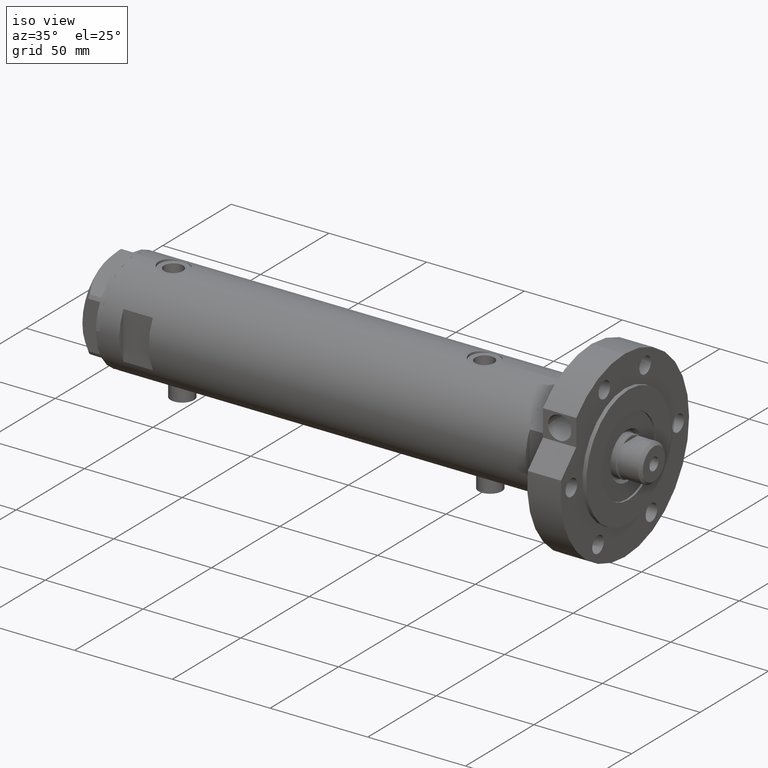
[diagram: clean part render]
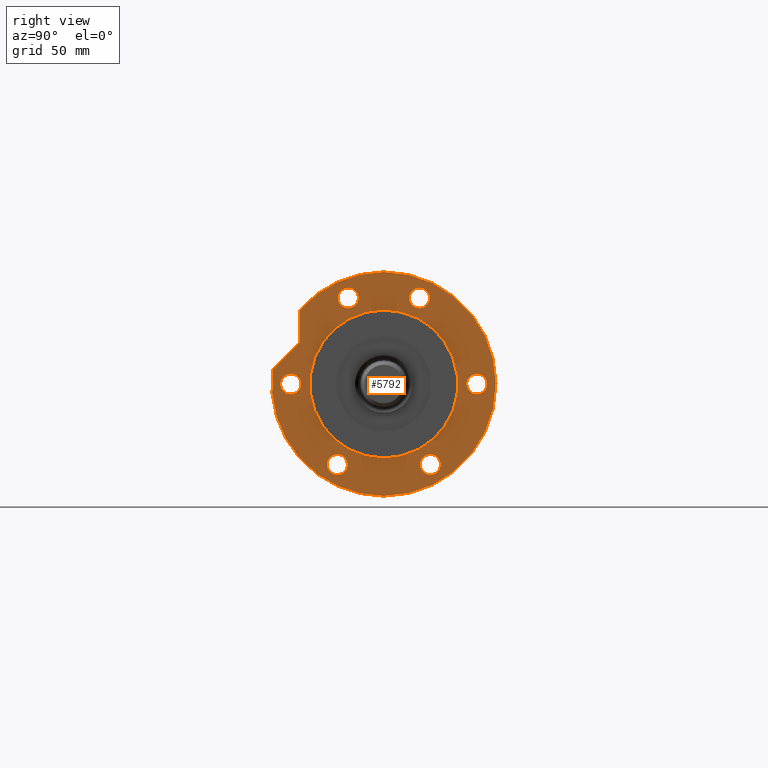
[diagram: tour spotlight — one face highlighted and labeled with its STEP entity id]
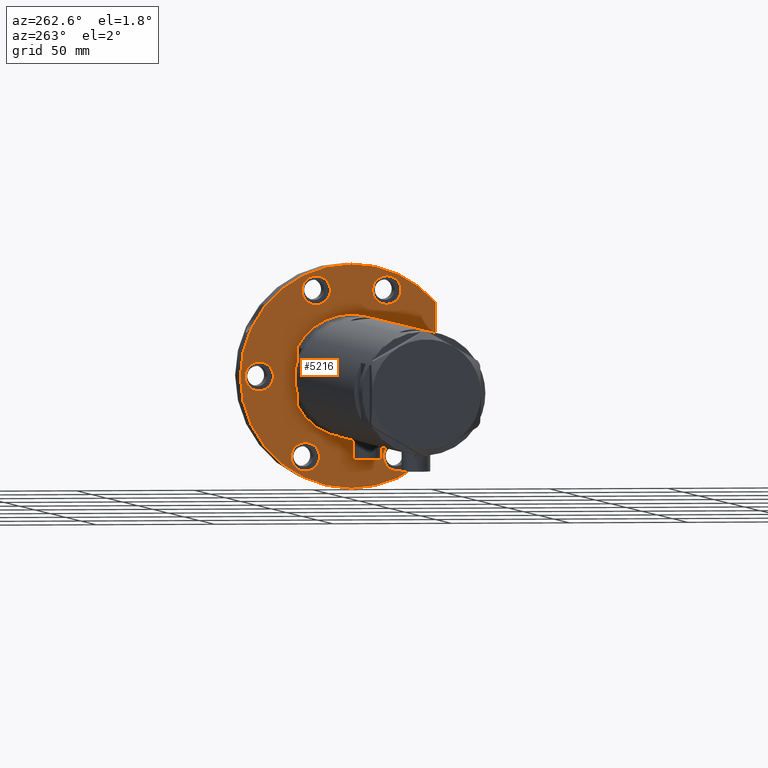
[diagram: tour spotlight — one face highlighted and labeled with its STEP entity id]
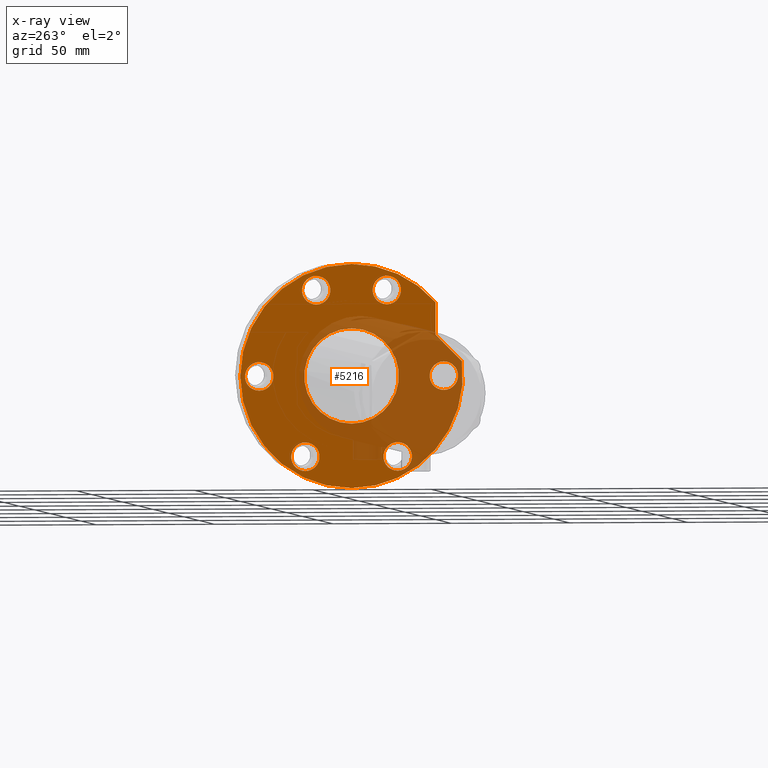
[diagram: x-ray of the same camera — body ghosted, this tour face saturated]
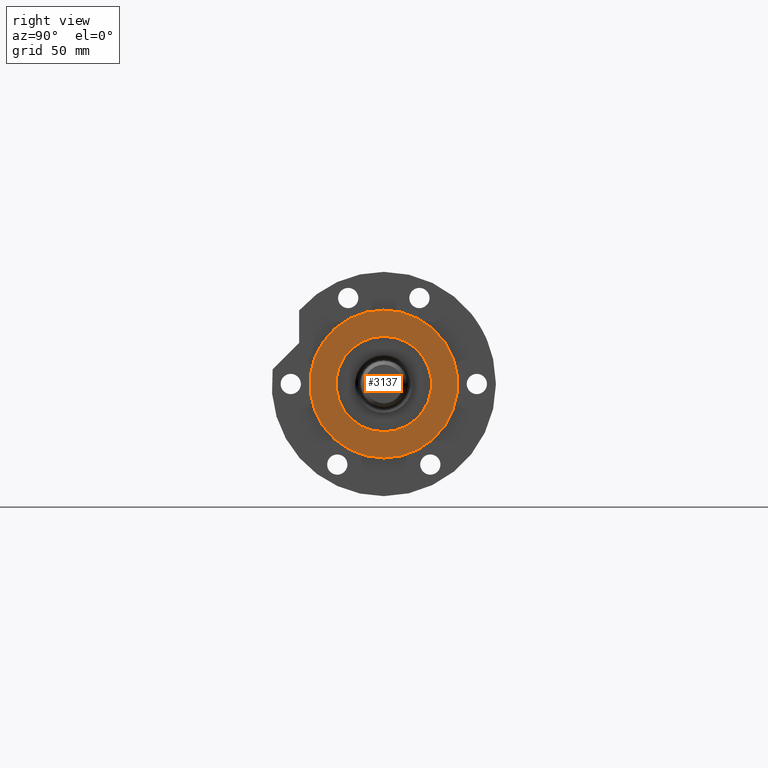
[diagram: tour spotlight — one face highlighted and labeled with its STEP entity id]
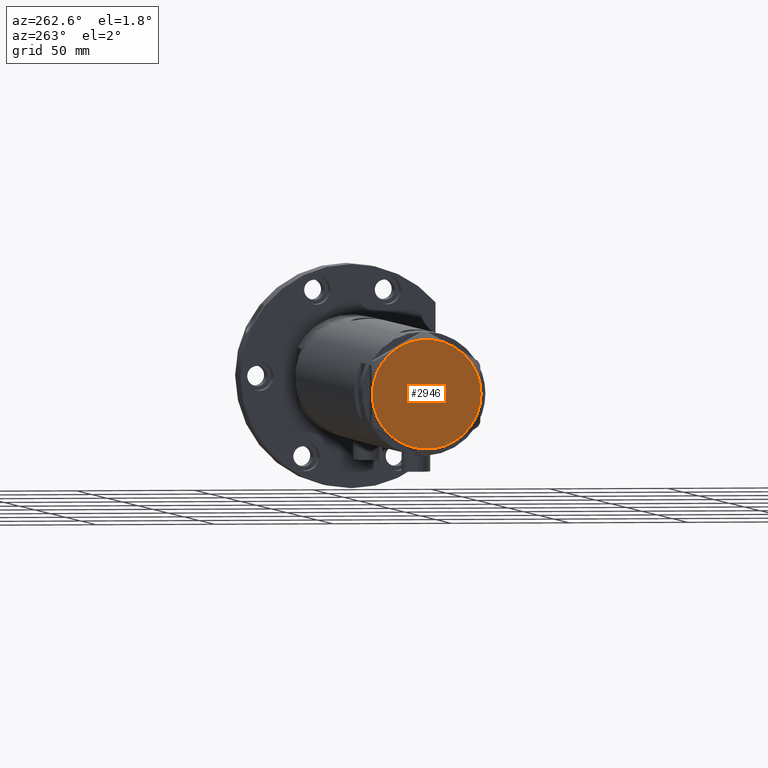
[diagram: tour spotlight — one face highlighted and labeled with its STEP entity id]
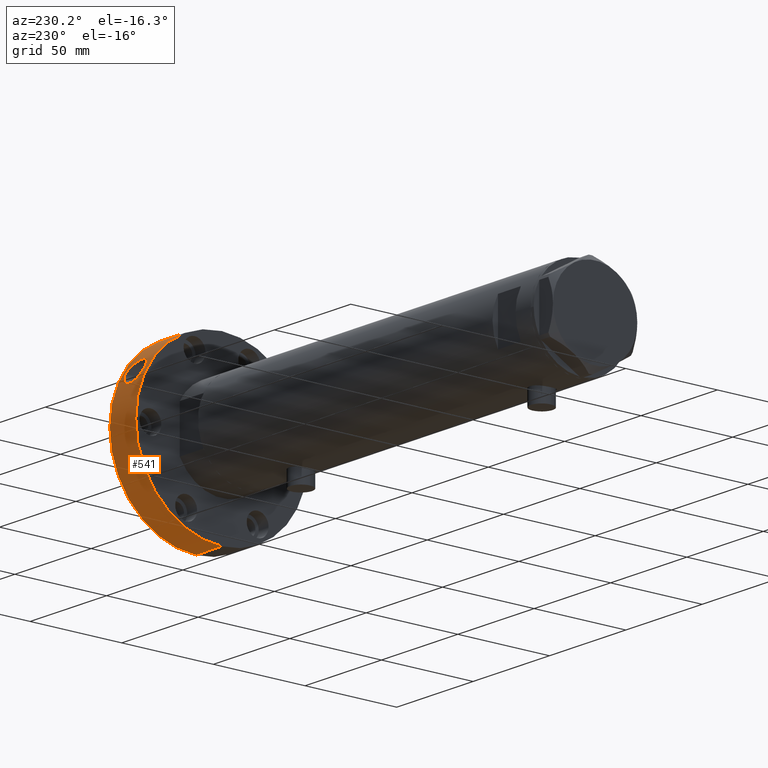
[diagram: tour spotlight — one face highlighted and labeled with its STEP entity id]
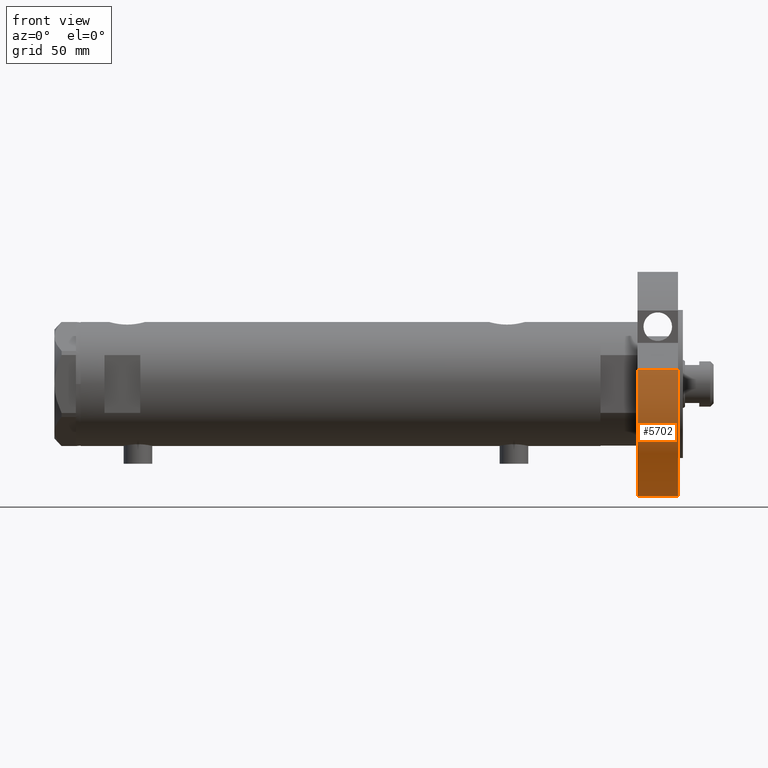
[diagram: tour spotlight — one face highlighted and labeled with its STEP entity id]
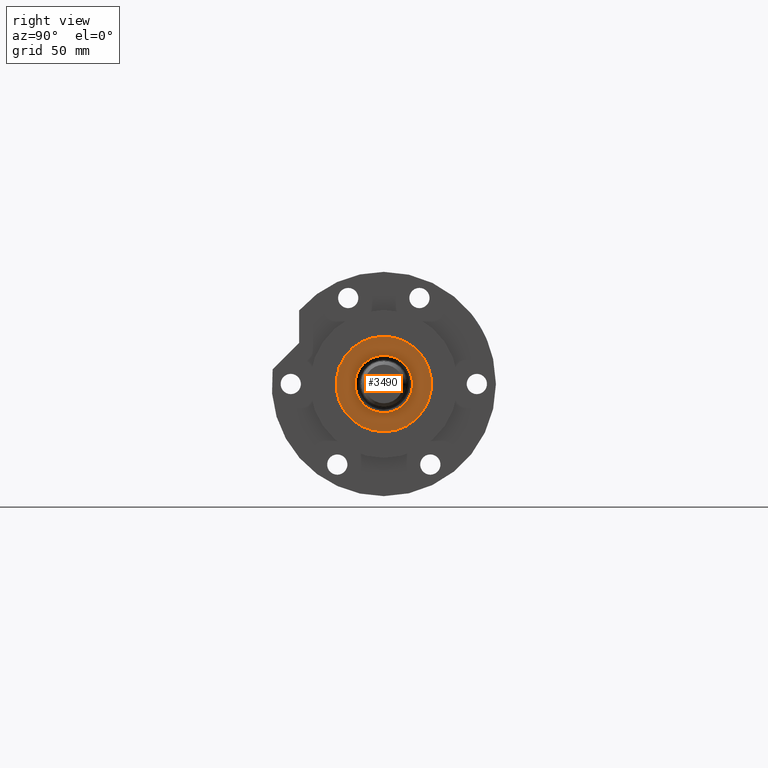
[diagram: tour spotlight — one face highlighted and labeled with its STEP entity id]
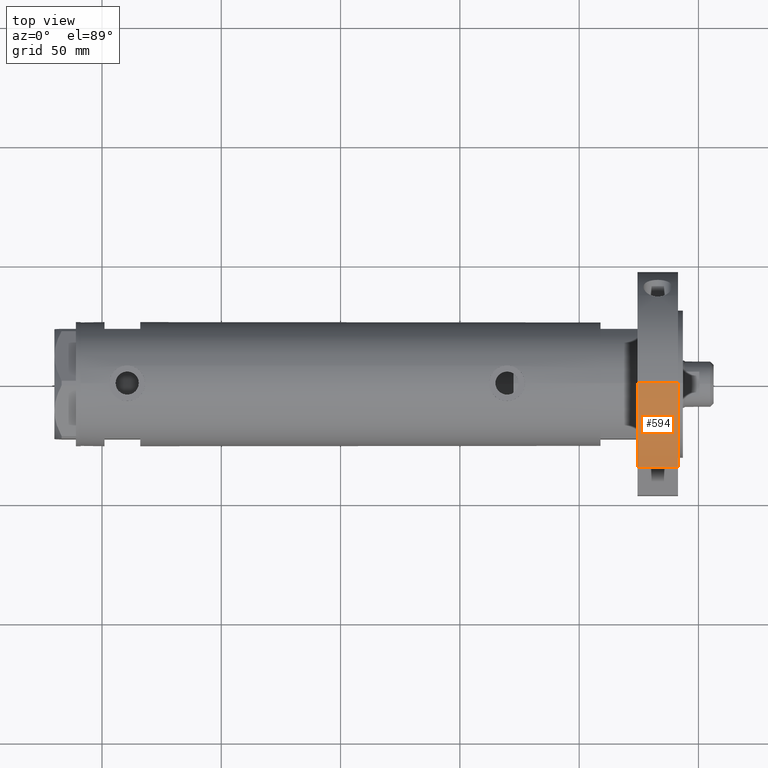
[diagram: tour spotlight — one face highlighted and labeled with its STEP entity id]
A machine part: a face-by-face anatomy tour. The part has 178 B-rep faces; the first image is the clean iso view, then the 8 largest visible faces are spotlighted one at a time (largest first), each with its STEP entity span.

Face 1 — right view, entity #5792. In plain terms, the highlighted planar face has unit normal (1, 0, -0).
Definition (entity closure, byte-faithful):
#15 = EDGE_LOOP ( 'NONE', ( #2960, #6223 ) ) ;
#47 = DIRECTION ( 'NONE',  ( 1.000000000000000000, 0.000000000000000000, 0.000000000000000000 ) ) ;
#51 = DIRECTION ( 'NONE',  ( 0.000000000000000000, 0.000000000000000000, 1.000000000000000000 ) ) ;
#53 = CIRCLE ( 'NONE', #3640, 46.99999999999999289 ) ;
#92 = EDGE_CURVE ( 'NONE', #3116, #1333, #4906, .T. ) ;
#161 = AXIS2_PLACEMENT_3D ( 'NONE', #6023, #972, #5526 ) ;
#202 = CIRCLE ( 'NONE', #3024, 31.00000000000000711 ) ;
#295 = AXIS2_PLACEMENT_3D ( 'NONE', #405, #4418, #3806 ) ;
#327 = CARTESIAN_POINT ( 'NONE',  ( 0.000000000000000000, 0.000000000000000000, 17.00000000000000000 ) ) ;
#342 = VERTEX_POINT ( 'NONE', #4620 ) ;
#358 = VERTEX_POINT ( 'NONE', #6271 ) ;
#405 = CARTESIAN_POINT ( 'NONE',  ( 0.000000000000000000, 39.00000000000000000, 17.00000000000000000 ) ) ;
#408 = CARTESIAN_POINT ( 'NONE',  ( 0.000000000000000000, 0.000000000000000000, 17.00000000000000000 ) ) ;
#415 = CARTESIAN_POINT ( 'NONE',  ( 3.617158501555293296E-14, 35.47361286101151734, 17.00000000000000000 ) ) ;
#492 = AXIS2_PLACEMENT_3D ( 'NONE', #5446, #4360, #6368 ) ;
#507 = VERTEX_POINT ( 'NONE', #4782 ) ;
#514 = DIRECTION ( 'NONE',  ( 0.000000000000000000, 0.000000000000000000, 1.000000000000000000 ) ) ;
#539 = EDGE_CURVE ( 'NONE', #507, #4913, #3777, .T. ) ;
#575 = AXIS2_PLACEMENT_3D ( 'NONE', #1382, #5375, #3775 ) ;
#681 = VERTEX_POINT ( 'NONE', #5466 ) ;
#728 = DIRECTION ( 'NONE',  ( 1.000000000000000000, 0.000000000000000000, 0.000000000000000000 ) ) ;
#775 = EDGE_LOOP ( 'NONE', ( #3998, #1335 ) ) ;
#780 = VERTEX_POINT ( 'NONE', #5095 ) ;
#892 = EDGE_LOOP ( 'NONE', ( #1314, #4691 ) ) ;
#915 = EDGE_CURVE ( 'NONE', #1831, #358, #1678, .T. ) ;
#946 = DIRECTION ( 'NONE',  ( 0.000000000000000000, 0.000000000000000000, 1.000000000000000000 ) ) ;
#972 = DIRECTION ( 'NONE',  ( 0.000000000000000000, 0.000000000000000000, 1.000000000000000000 ) ) ;
#1000 = ORIENTED_EDGE ( 'NONE', *, *, #5577, .F. ) ;
#1088 = CARTESIAN_POINT ( 'NONE',  ( 0.000000000000000000, -39.00000000000000000, 17.00000000000000000 ) ) ;
#1155 = ORIENTED_EDGE ( 'NONE', *, *, #1907, .F. ) ;
#1159 = CIRCLE ( 'NONE', #1905, 4.250000000000003553 ) ;
#1166 = CARTESIAN_POINT ( 'NONE',  ( 46.99999999999999289, 5.755839955992559063E-15, 17.00000000000000000 ) ) ;
#1191 = CARTESIAN_POINT ( 'NONE',  ( 31.78130176794011064, -14.92465386223865842, 17.00000000000000000 ) ) ;
#1232 = CIRCLE ( 'NONE', #1539, 4.250000000000000888 ) ;
#1280 = CARTESIAN_POINT ( 'NONE',  ( -38.02499074759302289, -19.50000000000015277, 17.00000000000000000 ) ) ;
#1286 = VERTEX_POINT ( 'NONE', #3796 ) ;
#1305 = EDGE_CURVE ( 'NONE', #1286, #3063, #3270, .T. ) ;
#1314 = ORIENTED_EDGE ( 'NONE', *, *, #5041, .F. ) ;
#1323 = DIRECTION ( 'NONE',  ( 1.000000000000000000, 0.000000000000000000, 0.000000000000000000 ) ) ;
#1329 = EDGE_CURVE ( 'NONE', #2550, #780, #1159, .T. ) ;
#1333 = VERTEX_POINT ( 'NONE', #4319 ) ;
#1335 = ORIENTED_EDGE ( 'NONE', *, *, #6055, .F. ) ;
#1338 = DIRECTION ( 'NONE',  ( 1.000000000000000000, 0.000000000000000000, 0.000000000000000000 ) ) ;
#1382 = CARTESIAN_POINT ( 'NONE',  ( -33.77499074759302289, -19.50000000000015277, 17.00000000000000000 ) ) ;
#1397 = DIRECTION ( 'NONE',  ( 0.7071067811865511255, -0.7071067811865440200, 0.000000000000000000 ) ) ;
#1480 = EDGE_LOOP ( 'NONE', ( #1155, #3666 ) ) ;
#1501 = DIRECTION ( 'NONE',  ( 1.000000000000000000, 0.000000000000000000, 0.000000000000000000 ) ) ;
#1530 = EDGE_CURVE ( 'NONE', #2772, #342, #2315, .T. ) ;
#1539 = AXIS2_PLACEMENT_3D ( 'NONE', #1088, #3097, #5082 ) ;
#1575 = DIRECTION ( 'NONE',  ( 1.000000000000000000, 0.000000000000000000, 0.000000000000000000 ) ) ;
#1621 = ORIENTED_EDGE ( 'NONE', *, *, #1329, .F. ) ;
#1648 = FACE_BOUND ( 'NONE', #1480, .T. ) ;
#1678 = CIRCLE ( 'NONE', #4401, 46.99999999999999289 ) ;
#1690 = CARTESIAN_POINT ( 'NONE',  ( 31.00000000000000711, 3.796405077356795904E-15, 17.00000000000000000 ) ) ;
#1722 = FACE_BOUND ( 'NONE', #892, .T. ) ;
#1790 = AXIS2_PLACEMENT_3D ( 'NONE', #3411, #946, #4872 ) ;
#1798 = DIRECTION ( 'NONE',  ( 1.000000000000000000, 0.000000000000000000, 0.000000000000000000 ) ) ;
#1810 = CARTESIAN_POINT ( 'NONE',  ( 31.78130176794011064, 14.92465386223865842, 17.00000000000000000 ) ) ;
#1831 = VERTEX_POINT ( 'NONE', #2052 ) ;
#1905 = AXIS2_PLACEMENT_3D ( 'NONE', #6374, #3395, #1798 ) ;
#1907 = EDGE_CURVE ( 'NONE', #4913, #507, #3737, .T. ) ;
#2052 = CARTESIAN_POINT ( 'NONE',  ( 6.092310621118299352, 46.60347359688769586, 17.00000000000000000 ) ) ;
#2058 = EDGE_LOOP ( 'NONE', ( #6329, #6411 ) ) ;
#2062 = CARTESIAN_POINT ( 'NONE',  ( 0.000000000000000000, -39.00000000000000000, 17.00000000000000000 ) ) ;
#2138 = FACE_OUTER_BOUND ( 'NONE', #2493, .T. ) ;
#2172 = AXIS2_PLACEMENT_3D ( 'NONE', #5229, #4109, #728 ) ;
#2190 = CIRCLE ( 'NONE', #2389, 4.250000000000003553 ) ;
#2216 = CARTESIAN_POINT ( 'NONE',  ( -33.77499074759315079, 19.49999999999992539, 17.00000000000000000 ) ) ;
#2315 = CIRCLE ( 'NONE', #5449, 4.249999999999996447 ) ;
#2389 = AXIS2_PLACEMENT_3D ( 'NONE', #4316, #3844, #1323 ) ;
#2485 = ORIENTED_EDGE ( 'NONE', *, *, #3148, .T. ) ;
#2493 = EDGE_LOOP ( 'NONE', ( #4409, #3072, #3431, #2485, #5969 ) ) ;
#2527 = DIRECTION ( 'NONE',  ( 0.000000000000000000, 0.000000000000000000, 1.000000000000000000 ) ) ;
#2550 = VERTEX_POINT ( 'NONE', #1810 ) ;
#2554 = DIRECTION ( 'NONE',  ( 1.000000000000000000, 0.000000000000000000, 0.000000000000000000 ) ) ;
#2557 = EDGE_LOOP ( 'NONE', ( #5047, #1000 ) ) ;
#2568 = EDGE_CURVE ( 'NONE', #5428, #6327, #6040, .T. ) ;
#2639 = CARTESIAN_POINT ( 'NONE',  ( 36.03130176794011419, 14.92465386223865842, 17.00000000000000000 ) ) ;
#2666 = ORIENTED_EDGE ( 'NONE', *, *, #3787, .F. ) ;
#2700 = DIRECTION ( 'NONE',  ( 1.000000000000000000, 0.000000000000000000, 0.000000000000000000 ) ) ;
#2702 = FACE_BOUND ( 'NONE', #15, .T. ) ;
#2772 = VERTEX_POINT ( 'NONE', #3661 ) ;
#2818 = EDGE_LOOP ( 'NONE', ( #1621, #2666 ) ) ;
#2826 = CARTESIAN_POINT ( 'NONE',  ( -29.52499074759301578, -19.50000000000015277, 17.00000000000000000 ) ) ;
#2836 = CIRCLE ( 'NONE', #1790, 4.250000000000003553 ) ;
#2885 = DIRECTION ( 'NONE',  ( 0.000000000000000000, 0.000000000000000000, 1.000000000000000000 ) ) ;
#2960 = ORIENTED_EDGE ( 'NONE', *, *, #5492, .F. ) ;
#2988 = DIRECTION ( 'NONE',  ( 0.000000000000000000, 0.000000000000000000, 1.000000000000000000 ) ) ;
#3004 = DIRECTION ( 'NONE',  ( 0.000000000000000000, 0.000000000000000000, 1.000000000000000000 ) ) ;
#3024 = AXIS2_PLACEMENT_3D ( 'NONE', #408, #2988, #1501 ) ;
#3063 = VERTEX_POINT ( 'NONE', #1690 ) ;
#3072 = ORIENTED_EDGE ( 'NONE', *, *, #4622, .F. ) ;
#3097 = DIRECTION ( 'NONE',  ( 0.000000000000000000, 0.000000000000000000, 1.000000000000000000 ) ) ;
#3116 = VERTEX_POINT ( 'NONE', #1191 ) ;
#3148 = EDGE_CURVE ( 'NONE', #358, #5152, #6049, .T. ) ;
#3174 = EDGE_CURVE ( 'NONE', #5341, #4627, #1232, .T. ) ;
#3270 = CIRCLE ( 'NONE', #3678, 31.00000000000000711 ) ;
#3300 = DIRECTION ( 'NONE',  ( 0.000000000000000000, 0.000000000000000000, 1.000000000000000000 ) ) ;
#3332 = AXIS2_PLACEMENT_3D ( 'NONE', #2639, #2527, #47 ) ;
#3395 = DIRECTION ( 'NONE',  ( 0.000000000000000000, 0.000000000000000000, 1.000000000000000000 ) ) ;
#3411 = CARTESIAN_POINT ( 'NONE',  ( -33.77499074759302289, -19.50000000000015277, 17.00000000000000000 ) ) ;
#3412 = EDGE_CURVE ( 'NONE', #5152, #3921, #53, .T. ) ;
#3419 = LINE ( 'NONE', #415, #4585 ) ;
#3431 = ORIENTED_EDGE ( 'NONE', *, *, #915, .T. ) ;
#3501 = FACE_BOUND ( 'NONE', #2818, .T. ) ;
#3640 = AXIS2_PLACEMENT_3D ( 'NONE', #5978, #514, #2554 ) ;
#3660 = AXIS2_PLACEMENT_3D ( 'NONE', #2062, #6169, #1575 ) ;
#3661 = CARTESIAN_POINT ( 'NONE',  ( -29.52499074759315434, 19.49999999999992539, 17.00000000000000000 ) ) ;
#3666 = ORIENTED_EDGE ( 'NONE', *, *, #539, .F. ) ;
#3678 = AXIS2_PLACEMENT_3D ( 'NONE', #327, #3300, #4253 ) ;
#3737 = CIRCLE ( 'NONE', #161, 4.250000000000000888 ) ;
#3775 = DIRECTION ( 'NONE',  ( 1.000000000000000000, 0.000000000000000000, 0.000000000000000000 ) ) ;
#3777 = CIRCLE ( 'NONE', #295, 4.250000000000000888 ) ;
#3787 = EDGE_CURVE ( 'NONE', #780, #2550, #4792, .T. ) ;
#3796 = CARTESIAN_POINT ( 'NONE',  ( -31.00000000000000711, 0.000000000000000000, 17.00000000000000000 ) ) ;
#3800 = CARTESIAN_POINT ( 'NONE',  ( 0.000000000000000000, 0.000000000000000000, 17.00000000000000000 ) ) ;
#3806 = DIRECTION ( 'NONE',  ( 1.000000000000000000, 0.000000000000000000, 0.000000000000000000 ) ) ;
#3844 = DIRECTION ( 'NONE',  ( 0.000000000000000000, 0.000000000000000000, 1.000000000000000000 ) ) ;
#3893 = LINE ( 'NONE', #5915, #3965 ) ;
#3921 = VERTEX_POINT ( 'NONE', #4686 ) ;
#3963 = AXIS2_PLACEMENT_3D ( 'NONE', #5500, #5912, #4490 ) ;
#3965 = VECTOR ( 'NONE', #1397, 999.9999999999998863 ) ;
#3998 = ORIENTED_EDGE ( 'NONE', *, *, #92, .F. ) ;
#4109 = DIRECTION ( 'NONE',  ( 0.000000000000000000, 0.000000000000000000, 1.000000000000000000 ) ) ;
#4209 = CARTESIAN_POINT ( 'NONE',  ( 4.250000000000000888, -39.00000000000000000, 17.00000000000000000 ) ) ;
#4220 = FACE_BOUND ( 'NONE', #2058, .T. ) ;
#4253 = DIRECTION ( 'NONE',  ( 1.000000000000000000, 0.000000000000000000, 0.000000000000000000 ) ) ;
#4316 = CARTESIAN_POINT ( 'NONE',  ( 36.03130176794011419, -14.92465386223865842, 17.00000000000000000 ) ) ;
#4319 = CARTESIAN_POINT ( 'NONE',  ( 40.28130176794012129, -14.92465386223865842, 17.00000000000000000 ) ) ;
#4360 = DIRECTION ( 'NONE',  ( 0.000000000000000000, 0.000000000000000000, 1.000000000000000000 ) ) ;
#4393 = CIRCLE ( 'NONE', #3660, 4.250000000000000888 ) ;
#4401 = AXIS2_PLACEMENT_3D ( 'NONE', #3800, #2885, #1338 ) ;
#4409 = ORIENTED_EDGE ( 'NONE', *, *, #4889, .F. ) ;
#4418 = DIRECTION ( 'NONE',  ( 0.000000000000000000, 0.000000000000000000, 1.000000000000000000 ) ) ;
#4490 = DIRECTION ( 'NONE',  ( 1.000000000000000000, 0.000000000000000000, 0.000000000000000000 ) ) ;
#4508 = FACE_BOUND ( 'NONE', #2557, .T. ) ;
#4585 = VECTOR ( 'NONE', #5411, 1000.000000000000000 ) ;
#4620 = CARTESIAN_POINT ( 'NONE',  ( -38.02499074759315079, 19.49999999999992539, 17.00000000000000000 ) ) ;
#4622 = EDGE_CURVE ( 'NONE', #1831, #681, #3893, .T. ) ;
#4627 = VERTEX_POINT ( 'NONE', #5418 ) ;
#4686 = CARTESIAN_POINT ( 'NONE',  ( 30.83217135699462830, 35.47361286101148892, 17.00000000000000000 ) ) ;
#4691 = ORIENTED_EDGE ( 'NONE', *, *, #3174, .F. ) ;
#4782 = CARTESIAN_POINT ( 'NONE',  ( 4.250000000000000888, 39.00000000000000000, 17.00000000000000000 ) ) ;
#4792 = CIRCLE ( 'NONE', #3332, 4.250000000000003553 ) ;
#4872 = DIRECTION ( 'NONE',  ( 1.000000000000000000, 0.000000000000000000, 0.000000000000000000 ) ) ;
#4889 = EDGE_CURVE ( 'NONE', #681, #3921, #3419, .T. ) ;
#4906 = CIRCLE ( 'NONE', #492, 4.250000000000003553 ) ;
#4913 = VERTEX_POINT ( 'NONE', #5936 ) ;
#4984 = PLANE ( 'NONE',  #6189 ) ;
#5041 = EDGE_CURVE ( 'NONE', #4627, #5341, #4393, .T. ) ;
#5047 = ORIENTED_EDGE ( 'NONE', *, *, #1305, .F. ) ;
#5082 = DIRECTION ( 'NONE',  ( 1.000000000000000000, 0.000000000000000000, 0.000000000000000000 ) ) ;
#5095 = CARTESIAN_POINT ( 'NONE',  ( 40.28130176794012129, 14.92465386223865842, 17.00000000000000000 ) ) ;
#5152 = VERTEX_POINT ( 'NONE', #1166 ) ;
#5228 = CARTESIAN_POINT ( 'NONE',  ( 0.000000000000000000, 0.000000000000000000, 17.00000000000000000 ) ) ;
#5229 = CARTESIAN_POINT ( 'NONE',  ( 0.000000000000000000, 0.000000000000000000, 17.00000000000000000 ) ) ;
#5341 = VERTEX_POINT ( 'NONE', #4209 ) ;
#5375 = DIRECTION ( 'NONE',  ( 0.000000000000000000, 0.000000000000000000, 1.000000000000000000 ) ) ;
#5411 = DIRECTION ( 'NONE',  ( 1.000000000000000000, -1.019675812477181804E-15, 0.000000000000000000 ) ) ;
#5418 = CARTESIAN_POINT ( 'NONE',  ( -4.250000000000000888, -39.00000000000000000, 17.00000000000000000 ) ) ;
#5428 = VERTEX_POINT ( 'NONE', #2826 ) ;
#5446 = CARTESIAN_POINT ( 'NONE',  ( 36.03130176794011419, -14.92465386223865842, 17.00000000000000000 ) ) ;
#5449 = AXIS2_PLACEMENT_3D ( 'NONE', #2216, #51, #2700 ) ;
#5466 = CARTESIAN_POINT ( 'NONE',  ( 17.22217135699461110, 35.47361286101150313, 17.00000000000000000 ) ) ;
#5486 = FACE_BOUND ( 'NONE', #775, .T. ) ;
#5492 = EDGE_CURVE ( 'NONE', #6327, #5428, #2836, .T. ) ;
#5500 = CARTESIAN_POINT ( 'NONE',  ( -33.77499074759315079, 19.49999999999992539, 17.00000000000000000 ) ) ;
#5526 = DIRECTION ( 'NONE',  ( 1.000000000000000000, 0.000000000000000000, 0.000000000000000000 ) ) ;
#5577 = EDGE_CURVE ( 'NONE', #3063, #1286, #202, .T. ) ;
#5718 = DIRECTION ( 'NONE',  ( 1.000000000000000000, 0.000000000000000000, -0.000000000000000000 ) ) ;
#5792 = ADVANCED_FACE ( 'NONE', ( #1648, #3501, #5486, #1722, #2702, #4220, #2138, #4508 ), #4984, .T. ) ;
#5912 = DIRECTION ( 'NONE',  ( 0.000000000000000000, 0.000000000000000000, 1.000000000000000000 ) ) ;
#5915 = CARTESIAN_POINT ( 'NONE',  ( 26.34789210900296652, 26.34789210900323297, 17.00000000000000000 ) ) ;
#5936 = CARTESIAN_POINT ( 'NONE',  ( -4.250000000000000888, 39.00000000000000000, 17.00000000000000000 ) ) ;
#5952 = CIRCLE ( 'NONE', #3963, 4.249999999999996447 ) ;
#5969 = ORIENTED_EDGE ( 'NONE', *, *, #3412, .T. ) ;
#5978 = CARTESIAN_POINT ( 'NONE',  ( 0.000000000000000000, 0.000000000000000000, 17.00000000000000000 ) ) ;
#6023 = CARTESIAN_POINT ( 'NONE',  ( 0.000000000000000000, 39.00000000000000000, 17.00000000000000000 ) ) ;
#6040 = CIRCLE ( 'NONE', #575, 4.250000000000003553 ) ;
#6049 = CIRCLE ( 'NONE', #2172, 46.99999999999999289 ) ;
#6055 = EDGE_CURVE ( 'NONE', #1333, #3116, #2190, .T. ) ;
#6064 = EDGE_CURVE ( 'NONE', #342, #2772, #5952, .T. ) ;
#6169 = DIRECTION ( 'NONE',  ( 0.000000000000000000, 0.000000000000000000, 1.000000000000000000 ) ) ;
#6189 = AXIS2_PLACEMENT_3D ( 'NONE', #5228, #3004, #5718 ) ;
#6223 = ORIENTED_EDGE ( 'NONE', *, *, #2568, .F. ) ;
#6271 = CARTESIAN_POINT ( 'NONE',  ( -46.99999999999999289, 0.000000000000000000, 17.00000000000000000 ) ) ;
#6327 = VERTEX_POINT ( 'NONE', #1280 ) ;
#6329 = ORIENTED_EDGE ( 'NONE', *, *, #6064, .F. ) ;
#6368 = DIRECTION ( 'NONE',  ( 1.000000000000000000, 0.000000000000000000, 0.000000000000000000 ) ) ;
#6374 = CARTESIAN_POINT ( 'NONE',  ( 36.03130176794011419, 14.92465386223865842, 17.00000000000000000 ) ) ;
#6411 = ORIENTED_EDGE ( 'NONE', *, *, #1530, .F. ) ;

Face 2 — auxiliary view, entity #5216. An x-ray twin of the same camera follows (body ghosted, this face saturated) — the face is partly hidden behind the body. In plain terms, the highlighted planar face has unit normal (1, 0, -0).
Definition (entity closure, byte-faithful):
#43 = CARTESIAN_POINT ( 'NONE',  ( 30.03130176794011774, 14.92465386223865842, 0.000000000000000000 ) ) ;
#54 = DIRECTION ( 'NONE',  ( 0.000000000000000000, 0.000000000000000000, -1.000000000000000000 ) ) ;
#57 = EDGE_CURVE ( 'NONE', #5281, #2249, #4075, .T. ) ;
#62 = EDGE_CURVE ( 'NONE', #5290, #4558, #3874, .T. ) ;
#81 = VECTOR ( 'NONE', #3418, 1000.000000000000000 ) ;
#123 = VERTEX_POINT ( 'NONE', #1390 ) ;
#134 = EDGE_LOOP ( 'NONE', ( #4452, #4237 ) ) ;
#152 = DIRECTION ( 'NONE',  ( 0.000000000000000000, 0.000000000000000000, -1.000000000000000000 ) ) ;
#199 = EDGE_CURVE ( 'NONE', #1802, #6492, #4916, .T. ) ;
#207 = DIRECTION ( 'NONE',  ( 1.000000000000000000, 0.000000000000000000, -0.000000000000000000 ) ) ;
#241 = VERTEX_POINT ( 'NONE', #1604 ) ;
#276 = CIRCLE ( 'NONE', #3854, 46.99999999999999289 ) ;
#451 = CARTESIAN_POINT ( 'NONE',  ( -39.77499074759302289, -19.50000000000015277, 0.000000000000000000 ) ) ;
#574 = VERTEX_POINT ( 'NONE', #1001 ) ;
#612 = DIRECTION ( 'NONE',  ( -1.000000000000000000, 0.000000000000000000, 0.000000000000000000 ) ) ;
#623 = DIRECTION ( 'NONE',  ( 0.7071067811865511255, -0.7071067811865440200, -0.000000000000000000 ) ) ;
#627 = PLANE ( 'NONE',  #927 ) ;
#648 = CARTESIAN_POINT ( 'NONE',  ( 0.000000000000000000, 0.000000000000000000, 0.000000000000000000 ) ) ;
#694 = FACE_BOUND ( 'NONE', #3531, .T. ) ;
#709 = CIRCLE ( 'NONE', #4282, 46.99999999999999289 ) ;
#714 = CIRCLE ( 'NONE', #4387, 5.999999999999998224 ) ;
#783 = CARTESIAN_POINT ( 'NONE',  ( -33.77499074759302289, -19.50000000000015277, 0.000000000000000000 ) ) ;
#863 = CARTESIAN_POINT ( 'NONE',  ( 30.03130176794011774, -14.92465386223865842, 0.000000000000000000 ) ) ;
#874 = VERTEX_POINT ( 'NONE', #5824 ) ;
#927 = AXIS2_PLACEMENT_3D ( 'NONE', #3202, #4569, #207 ) ;
#984 = ORIENTED_EDGE ( 'NONE', *, *, #4135, .F. ) ;
#1001 = CARTESIAN_POINT ( 'NONE',  ( 6.000000000000000888, 39.00000000000000000, 0.000000000000000000 ) ) ;
#1021 = DIRECTION ( 'NONE',  ( -1.000000000000000000, 0.000000000000000000, 0.000000000000000000 ) ) ;
#1045 = VERTEX_POINT ( 'NONE', #2042 ) ;
#1053 = EDGE_CURVE ( 'NONE', #574, #241, #4085, .T. ) ;
#1110 = DIRECTION ( 'NONE',  ( 0.000000000000000000, 0.000000000000000000, -1.000000000000000000 ) ) ;
#1128 = FACE_BOUND ( 'NONE', #4964, .T. ) ;
#1161 = DIRECTION ( 'NONE',  ( 0.000000000000000000, 0.000000000000000000, 1.000000000000000000 ) ) ;
#1228 = AXIS2_PLACEMENT_3D ( 'NONE', #4463, #4435, #2562 ) ;
#1262 = DIRECTION ( 'NONE',  ( 1.000000000000000000, 0.000000000000000000, 0.000000000000000000 ) ) ;
#1320 = DIRECTION ( 'NONE',  ( -1.000000000000000000, 0.000000000000000000, 0.000000000000000000 ) ) ;
#1363 = CARTESIAN_POINT ( 'NONE',  ( -33.77499074759302289, -19.50000000000015277, 0.000000000000000000 ) ) ;
#1371 = AXIS2_PLACEMENT_3D ( 'NONE', #2439, #3565, #3071 ) ;
#1374 = VERTEX_POINT ( 'NONE', #863 ) ;
#1380 = EDGE_CURVE ( 'NONE', #4558, #5290, #4505, .T. ) ;
#1390 = CARTESIAN_POINT ( 'NONE',  ( -46.99999999999999289, 0.000000000000000000, 0.000000000000000000 ) ) ;
#1422 = DIRECTION ( 'NONE',  ( 0.000000000000000000, 0.000000000000000000, -1.000000000000000000 ) ) ;
#1439 = AXIS2_PLACEMENT_3D ( 'NONE', #4924, #54, #6441 ) ;
#1442 = CARTESIAN_POINT ( 'NONE',  ( 0.000000000000000000, 0.000000000000000000, 0.000000000000000000 ) ) ;
#1521 = VERTEX_POINT ( 'NONE', #4692 ) ;
#1604 = CARTESIAN_POINT ( 'NONE',  ( -6.000000000000000888, 39.00000000000000000, 0.000000000000000000 ) ) ;
#1614 = CARTESIAN_POINT ( 'NONE',  ( -27.77499074759315434, 19.49999999999992539, 0.000000000000000000 ) ) ;
#1647 = AXIS2_PLACEMENT_3D ( 'NONE', #5651, #1161, #4141 ) ;
#1667 = AXIS2_PLACEMENT_3D ( 'NONE', #4350, #1805, #3862 ) ;
#1679 = DIRECTION ( 'NONE',  ( -1.000000000000000000, 0.000000000000000000, 0.000000000000000000 ) ) ;
#1802 = VERTEX_POINT ( 'NONE', #3228 ) ;
#1805 = DIRECTION ( 'NONE',  ( 0.000000000000000000, 0.000000000000000000, 1.000000000000000000 ) ) ;
#1833 = VERTEX_POINT ( 'NONE', #4576 ) ;
#1870 = ORIENTED_EDGE ( 'NONE', *, *, #62, .F. ) ;
#1921 = CARTESIAN_POINT ( 'NONE',  ( -39.77499074759315079, 19.49999999999992539, 0.000000000000000000 ) ) ;
#1950 = CIRCLE ( 'NONE', #4562, 6.000000000000000888 ) ;
#2042 = CARTESIAN_POINT ( 'NONE',  ( 6.000000000000000000, -39.00000000000000000, 0.000000000000000000 ) ) ;
#2111 = FACE_BOUND ( 'NONE', #3176, .T. ) ;
#2146 = ORIENTED_EDGE ( 'NONE', *, *, #199, .T. ) ;
#2181 = FACE_BOUND ( 'NONE', #3028, .T. ) ;
#2246 = DIRECTION ( 'NONE',  ( 0.000000000000000000, 0.000000000000000000, 1.000000000000000000 ) ) ;
#2249 = VERTEX_POINT ( 'NONE', #3913 ) ;
#2258 = DIRECTION ( 'NONE',  ( 0.000000000000000000, 0.000000000000000000, -1.000000000000000000 ) ) ;
#2291 = EDGE_CURVE ( 'NONE', #241, #574, #1950, .T. ) ;
#2299 = CIRCLE ( 'NONE', #3552, 5.999999999999998224 ) ;
#2307 = EDGE_CURVE ( 'NONE', #5793, #4588, #2798, .T. ) ;
#2368 = AXIS2_PLACEMENT_3D ( 'NONE', #3840, #5880, #1320 ) ;
#2418 = CARTESIAN_POINT ( 'NONE',  ( 30.83217135699462830, 35.47361286101148892, 0.000000000000000000 ) ) ;
#2439 = CARTESIAN_POINT ( 'NONE',  ( 0.000000000000000000, 39.00000000000000000, 0.000000000000000000 ) ) ;
#2562 = DIRECTION ( 'NONE',  ( -1.000000000000000000, 0.000000000000000000, 0.000000000000000000 ) ) ;
#2584 = CIRCLE ( 'NONE', #6266, 5.999999999999998224 ) ;
#2630 = CARTESIAN_POINT ( 'NONE',  ( 42.03130176794011419, -14.92465386223865842, 0.000000000000000000 ) ) ;
#2638 = LINE ( 'NONE', #5123, #5317 ) ;
#2661 = DIRECTION ( 'NONE',  ( 1.000000000000000000, 0.000000000000000000, 0.000000000000000000 ) ) ;
#2707 = AXIS2_PLACEMENT_3D ( 'NONE', #6244, #152, #1679 ) ;
#2734 = CARTESIAN_POINT ( 'NONE',  ( 36.03130176794011419, 14.92465386223865842, 0.000000000000000000 ) ) ;
#2742 = CARTESIAN_POINT ( 'NONE',  ( 0.000000000000000000, 0.000000000000000000, 0.000000000000000000 ) ) ;
#2750 = DIRECTION ( 'NONE',  ( 0.000000000000000000, 0.000000000000000000, -1.000000000000000000 ) ) ;
#2798 = CIRCLE ( 'NONE', #2368, 5.999999999999998224 ) ;
#2857 = ORIENTED_EDGE ( 'NONE', *, *, #6293, .F. ) ;
#2869 = DIRECTION ( 'NONE',  ( -1.000000000000000000, 0.000000000000000000, 0.000000000000000000 ) ) ;
#2903 = EDGE_CURVE ( 'NONE', #6458, #1045, #3112, .T. ) ;
#2967 = EDGE_LOOP ( 'NONE', ( #4471, #2146, #2857, #984, #5606 ) ) ;
#2980 = EDGE_CURVE ( 'NONE', #1045, #6458, #5622, .T. ) ;
#3028 = EDGE_LOOP ( 'NONE', ( #3415, #3736 ) ) ;
#3071 = DIRECTION ( 'NONE',  ( -1.000000000000000000, 0.000000000000000000, 0.000000000000000000 ) ) ;
#3102 = EDGE_CURVE ( 'NONE', #2249, #5281, #5839, .T. ) ;
#3112 = CIRCLE ( 'NONE', #1228, 6.000000000000000000 ) ;
#3138 = FACE_BOUND ( 'NONE', #5374, .T. ) ;
#3176 = EDGE_LOOP ( 'NONE', ( #6392, #1870 ) ) ;
#3189 = EDGE_CURVE ( 'NONE', #1521, #1802, #2638, .T. ) ;
#3190 = DIRECTION ( 'NONE',  ( 0.000000000000000000, 0.000000000000000000, 1.000000000000000000 ) ) ;
#3195 = DIRECTION ( 'NONE',  ( 0.000000000000000000, 0.000000000000000000, -1.000000000000000000 ) ) ;
#3202 = CARTESIAN_POINT ( 'NONE',  ( 0.000000000000000000, 0.000000000000000000, 0.000000000000000000 ) ) ;
#3228 = CARTESIAN_POINT ( 'NONE',  ( 17.22217135699460755, 35.47361286101150313, 0.000000000000000000 ) ) ;
#3238 = FACE_BOUND ( 'NONE', #4483, .T. ) ;
#3268 = DIRECTION ( 'NONE',  ( -1.000000000000000000, 0.000000000000000000, 0.000000000000000000 ) ) ;
#3275 = CARTESIAN_POINT ( 'NONE',  ( -20.00000000000000000, 2.449293598294706513E-15, 0.000000000000000000 ) ) ;
#3343 = CIRCLE ( 'NONE', #1667, 46.99999999999999289 ) ;
#3415 = ORIENTED_EDGE ( 'NONE', *, *, #3425, .F. ) ;
#3417 = EDGE_CURVE ( 'NONE', #3906, #1374, #5415, .T. ) ;
#3418 = DIRECTION ( 'NONE',  ( 1.000000000000000000, -1.019675812477181606E-15, 0.000000000000000000 ) ) ;
#3425 = EDGE_CURVE ( 'NONE', #4974, #1833, #2584, .T. ) ;
#3448 = DIRECTION ( 'NONE',  ( 1.000000000000000000, 0.000000000000000000, 0.000000000000000000 ) ) ;
#3470 = AXIS2_PLACEMENT_3D ( 'NONE', #1363, #2750, #4857 ) ;
#3492 = CARTESIAN_POINT ( 'NONE',  ( 36.03130176794011419, -14.92465386223865842, 0.000000000000000000 ) ) ;
#3531 = EDGE_LOOP ( 'NONE', ( #5530, #5451 ) ) ;
#3536 = EDGE_CURVE ( 'NONE', #1521, #123, #276, .T. ) ;
#3552 = AXIS2_PLACEMENT_3D ( 'NONE', #5861, #2258, #5825 ) ;
#3565 = DIRECTION ( 'NONE',  ( 0.000000000000000000, 0.000000000000000000, -1.000000000000000000 ) ) ;
#3736 = ORIENTED_EDGE ( 'NONE', *, *, #4605, .F. ) ;
#3752 = AXIS2_PLACEMENT_3D ( 'NONE', #3492, #1422, #5475 ) ;
#3840 = CARTESIAN_POINT ( 'NONE',  ( -33.77499074759315079, 19.49999999999992539, 0.000000000000000000 ) ) ;
#3854 = AXIS2_PLACEMENT_3D ( 'NONE', #648, #3190, #2661 ) ;
#3861 = EDGE_CURVE ( 'NONE', #4588, #5793, #6054, .T. ) ;
#3862 = DIRECTION ( 'NONE',  ( 1.000000000000000000, 0.000000000000000000, 0.000000000000000000 ) ) ;
#3874 = CIRCLE ( 'NONE', #4185, 6.000000000000005329 ) ;
#3906 = VERTEX_POINT ( 'NONE', #2630 ) ;
#3913 = CARTESIAN_POINT ( 'NONE',  ( 20.00000000000000000, 0.000000000000000000, 0.000000000000000000 ) ) ;
#3982 = CARTESIAN_POINT ( 'NONE',  ( 36.03130176794011419, 14.92465386223865842, 0.000000000000000000 ) ) ;
#4005 = ORIENTED_EDGE ( 'NONE', *, *, #3102, .T. ) ;
#4045 = ORIENTED_EDGE ( 'NONE', *, *, #3417, .F. ) ;
#4075 = CIRCLE ( 'NONE', #4390, 20.00000000000000000 ) ;
#4085 = CIRCLE ( 'NONE', #1371, 6.000000000000000888 ) ;
#4135 = EDGE_CURVE ( 'NONE', #123, #874, #709, .T. ) ;
#4141 = DIRECTION ( 'NONE',  ( 1.000000000000000000, 0.000000000000000000, 0.000000000000000000 ) ) ;
#4185 = AXIS2_PLACEMENT_3D ( 'NONE', #783, #3195, #3268 ) ;
#4186 = FACE_BOUND ( 'NONE', #134, .T. ) ;
#4237 = ORIENTED_EDGE ( 'NONE', *, *, #2307, .F. ) ;
#4282 = AXIS2_PLACEMENT_3D ( 'NONE', #1442, #5533, #3448 ) ;
#4350 = CARTESIAN_POINT ( 'NONE',  ( 0.000000000000000000, 0.000000000000000000, 0.000000000000000000 ) ) ;
#4359 = CARTESIAN_POINT ( 'NONE',  ( 0.000000000000000000, 39.00000000000000000, 0.000000000000000000 ) ) ;
#4387 = AXIS2_PLACEMENT_3D ( 'NONE', #3982, #5506, #1021 ) ;
#4390 = AXIS2_PLACEMENT_3D ( 'NONE', #2742, #2246, #1262 ) ;
#4425 = ORIENTED_EDGE ( 'NONE', *, *, #6306, .F. ) ;
#4435 = DIRECTION ( 'NONE',  ( 0.000000000000000000, 0.000000000000000000, -1.000000000000000000 ) ) ;
#4452 = ORIENTED_EDGE ( 'NONE', *, *, #3861, .F. ) ;
#4463 = CARTESIAN_POINT ( 'NONE',  ( 0.000000000000000000, -39.00000000000000000, 0.000000000000000000 ) ) ;
#4471 = ORIENTED_EDGE ( 'NONE', *, *, #3189, .T. ) ;
#4483 = EDGE_LOOP ( 'NONE', ( #5858, #6139 ) ) ;
#4505 = CIRCLE ( 'NONE', #3470, 6.000000000000005329 ) ;
#4558 = VERTEX_POINT ( 'NONE', #451 ) ;
#4562 = AXIS2_PLACEMENT_3D ( 'NONE', #4359, #6366, #2869 ) ;
#4569 = DIRECTION ( 'NONE',  ( 0.000000000000000000, 0.000000000000000000, 1.000000000000000000 ) ) ;
#4576 = CARTESIAN_POINT ( 'NONE',  ( 42.03130176794011419, 14.92465386223865842, 0.000000000000000000 ) ) ;
#4588 = VERTEX_POINT ( 'NONE', #1921 ) ;
#4605 = EDGE_CURVE ( 'NONE', #1833, #4974, #714, .T. ) ;
#4692 = CARTESIAN_POINT ( 'NONE',  ( 6.092310621118299352, 46.60347359688769586, 0.000000000000000000 ) ) ;
#4857 = DIRECTION ( 'NONE',  ( -1.000000000000000000, 0.000000000000000000, 0.000000000000000000 ) ) ;
#4916 = LINE ( 'NONE', #6315, #81 ) ;
#4924 = CARTESIAN_POINT ( 'NONE',  ( 0.000000000000000000, -39.00000000000000000, 0.000000000000000000 ) ) ;
#4928 = CARTESIAN_POINT ( 'NONE',  ( -6.000000000000000000, -39.00000000000000000, 0.000000000000000000 ) ) ;
#4964 = EDGE_LOOP ( 'NONE', ( #4425, #4045 ) ) ;
#4974 = VERTEX_POINT ( 'NONE', #43 ) ;
#5123 = CARTESIAN_POINT ( 'NONE',  ( 17.22217135699461110, 35.47361286101150313, 0.000000000000000000 ) ) ;
#5129 = FACE_OUTER_BOUND ( 'NONE', #2967, .T. ) ;
#5216 = ADVANCED_FACE ( 'NONE', ( #694, #2181, #1128, #3238, #2111, #4186, #3138, #5129 ), #627, .F. ) ;
#5271 = CARTESIAN_POINT ( 'NONE',  ( -27.77499074759301578, -19.50000000000015277, 0.000000000000000000 ) ) ;
#5275 = ORIENTED_EDGE ( 'NONE', *, *, #57, .T. ) ;
#5281 = VERTEX_POINT ( 'NONE', #3275 ) ;
#5290 = VERTEX_POINT ( 'NONE', #5271 ) ;
#5317 = VECTOR ( 'NONE', #623, 999.9999999999998863 ) ;
#5374 = EDGE_LOOP ( 'NONE', ( #4005, #5275 ) ) ;
#5415 = CIRCLE ( 'NONE', #3752, 5.999999999999998224 ) ;
#5451 = ORIENTED_EDGE ( 'NONE', *, *, #1053, .F. ) ;
#5475 = DIRECTION ( 'NONE',  ( -1.000000000000000000, 0.000000000000000000, 0.000000000000000000 ) ) ;
#5506 = DIRECTION ( 'NONE',  ( 0.000000000000000000, 0.000000000000000000, -1.000000000000000000 ) ) ;
#5530 = ORIENTED_EDGE ( 'NONE', *, *, #2291, .F. ) ;
#5533 = DIRECTION ( 'NONE',  ( 0.000000000000000000, 0.000000000000000000, 1.000000000000000000 ) ) ;
#5606 = ORIENTED_EDGE ( 'NONE', *, *, #3536, .F. ) ;
#5622 = CIRCLE ( 'NONE', #1439, 6.000000000000000000 ) ;
#5651 = CARTESIAN_POINT ( 'NONE',  ( 0.000000000000000000, 0.000000000000000000, 0.000000000000000000 ) ) ;
#5793 = VERTEX_POINT ( 'NONE', #1614 ) ;
#5824 = CARTESIAN_POINT ( 'NONE',  ( 46.99999999999999289, 5.755839955992559063E-15, 0.000000000000000000 ) ) ;
#5825 = DIRECTION ( 'NONE',  ( -1.000000000000000000, 0.000000000000000000, 0.000000000000000000 ) ) ;
#5839 = CIRCLE ( 'NONE', #1647, 20.00000000000000000 ) ;
#5858 = ORIENTED_EDGE ( 'NONE', *, *, #2903, .F. ) ;
#5861 = CARTESIAN_POINT ( 'NONE',  ( 36.03130176794011419, -14.92465386223865842, 0.000000000000000000 ) ) ;
#5880 = DIRECTION ( 'NONE',  ( 0.000000000000000000, 0.000000000000000000, -1.000000000000000000 ) ) ;
#6054 = CIRCLE ( 'NONE', #2707, 5.999999999999998224 ) ;
#6139 = ORIENTED_EDGE ( 'NONE', *, *, #2980, .F. ) ;
#6244 = CARTESIAN_POINT ( 'NONE',  ( -33.77499074759315079, 19.49999999999992539, 0.000000000000000000 ) ) ;
#6266 = AXIS2_PLACEMENT_3D ( 'NONE', #2734, #1110, #612 ) ;
#6293 = EDGE_CURVE ( 'NONE', #874, #6492, #3343, .T. ) ;
#6306 = EDGE_CURVE ( 'NONE', #1374, #3906, #2299, .T. ) ;
#6315 = CARTESIAN_POINT ( 'NONE',  ( 17.22217135699461110, 35.47361286101150313, 0.000000000000000000 ) ) ;
#6366 = DIRECTION ( 'NONE',  ( 0.000000000000000000, 0.000000000000000000, -1.000000000000000000 ) ) ;
#6392 = ORIENTED_EDGE ( 'NONE', *, *, #1380, .F. ) ;
#6441 = DIRECTION ( 'NONE',  ( -1.000000000000000000, 0.000000000000000000, 0.000000000000000000 ) ) ;
#6458 = VERTEX_POINT ( 'NONE', #4928 ) ;
#6492 = VERTEX_POINT ( 'NONE', #2418 ) ;

Face 3 — right view, entity #3137. In plain terms, the highlighted planar face has unit normal (1, 0, -0).
Definition (entity closure, byte-faithful):
#198 = DIRECTION ( 'NONE',  ( 0.000000000000000000, 0.000000000000000000, 1.000000000000000000 ) ) ;
#200 = FACE_BOUND ( 'NONE', #573, .T. ) ;
#382 = AXIS2_PLACEMENT_3D ( 'NONE', #4696, #198, #2219 ) ;
#409 = DIRECTION ( 'NONE',  ( 0.000000000000000000, 0.000000000000000000, 1.000000000000000000 ) ) ;
#573 = EDGE_LOOP ( 'NONE', ( #6318, #3549 ) ) ;
#798 = VERTEX_POINT ( 'NONE', #6121 ) ;
#814 = CIRCLE ( 'NONE', #4473, 31.00000000000000711 ) ;
#1016 = DIRECTION ( 'NONE',  ( 1.000000000000000000, 0.000000000000000000, 0.000000000000000000 ) ) ;
#1384 = CARTESIAN_POINT ( 'NONE',  ( 0.000000000000000000, 0.000000000000000000, 19.00000000000000355 ) ) ;
#1445 = CIRCLE ( 'NONE', #4469, 20.00000000000000000 ) ;
#1650 = CARTESIAN_POINT ( 'NONE',  ( 0.000000000000000000, 0.000000000000000000, 19.00000000000000355 ) ) ;
#2107 = FACE_OUTER_BOUND ( 'NONE', #5103, .T. ) ;
#2139 = PLANE ( 'NONE',  #3851 ) ;
#2219 = DIRECTION ( 'NONE',  ( 1.000000000000000000, 0.000000000000000000, 0.000000000000000000 ) ) ;
#2230 = VERTEX_POINT ( 'NONE', #2900 ) ;
#2460 = DIRECTION ( 'NONE',  ( 0.000000000000000000, 0.000000000000000000, 1.000000000000000000 ) ) ;
#2689 = ORIENTED_EDGE ( 'NONE', *, *, #3382, .T. ) ;
#2900 = CARTESIAN_POINT ( 'NONE',  ( 20.00000000000000000, 0.000000000000000000, 19.00000000000000355 ) ) ;
#2964 = DIRECTION ( 'NONE',  ( 1.000000000000000000, 0.000000000000000000, 0.000000000000000000 ) ) ;
#3137 = ADVANCED_FACE ( 'NONE', ( #200, #2107 ), #2139, .T. ) ;
#3232 = DIRECTION ( 'NONE',  ( 0.000000000000000000, 0.000000000000000000, 1.000000000000000000 ) ) ;
#3382 = EDGE_CURVE ( 'NONE', #6275, #5392, #5733, .T. ) ;
#3385 = DIRECTION ( 'NONE',  ( 0.000000000000000000, 0.000000000000000000, 1.000000000000000000 ) ) ;
#3432 = AXIS2_PLACEMENT_3D ( 'NONE', #3515, #2460, #1016 ) ;
#3515 = CARTESIAN_POINT ( 'NONE',  ( 0.000000000000000000, 0.000000000000000000, 19.00000000000000355 ) ) ;
#3549 = ORIENTED_EDGE ( 'NONE', *, *, #3648, .F. ) ;
#3648 = EDGE_CURVE ( 'NONE', #798, #2230, #1445, .T. ) ;
#3851 = AXIS2_PLACEMENT_3D ( 'NONE', #1650, #3232, #6251 ) ;
#4469 = AXIS2_PLACEMENT_3D ( 'NONE', #5904, #409, #2964 ) ;
#4473 = AXIS2_PLACEMENT_3D ( 'NONE', #1384, #3385, #4578 ) ;
#4578 = DIRECTION ( 'NONE',  ( 1.000000000000000000, 0.000000000000000000, 0.000000000000000000 ) ) ;
#4696 = CARTESIAN_POINT ( 'NONE',  ( 0.000000000000000000, 0.000000000000000000, 19.00000000000000355 ) ) ;
#5103 = EDGE_LOOP ( 'NONE', ( #2689, #6069 ) ) ;
#5392 = VERTEX_POINT ( 'NONE', #5834 ) ;
#5524 = CIRCLE ( 'NONE', #382, 20.00000000000000000 ) ;
#5619 = EDGE_CURVE ( 'NONE', #5392, #6275, #814, .T. ) ;
#5733 = CIRCLE ( 'NONE', #3432, 31.00000000000000711 ) ;
#5834 = CARTESIAN_POINT ( 'NONE',  ( 31.00000000000000711, 3.796405077356795904E-15, 19.00000000000000355 ) ) ;
#5904 = CARTESIAN_POINT ( 'NONE',  ( 0.000000000000000000, 0.000000000000000000, 19.00000000000000355 ) ) ;
#5928 = EDGE_CURVE ( 'NONE', #2230, #798, #5524, .T. ) ;
#6069 = ORIENTED_EDGE ( 'NONE', *, *, #5619, .T. ) ;
#6121 = CARTESIAN_POINT ( 'NONE',  ( -20.00000000000000000, 2.449293598294706513E-15, 19.00000000000000355 ) ) ;
#6158 = CARTESIAN_POINT ( 'NONE',  ( -31.00000000000000711, 0.000000000000000000, 19.00000000000000355 ) ) ;
#6251 = DIRECTION ( 'NONE',  ( 1.000000000000000000, 0.000000000000000000, -0.000000000000000000 ) ) ;
#6275 = VERTEX_POINT ( 'NONE', #6158 ) ;
#6318 = ORIENTED_EDGE ( 'NONE', *, *, #5928, .F. ) ;

Face 4 — auxiliary view, entity #2946. In plain terms, the highlighted planar face has unit normal (-1, -0, 0).
Definition (entity closure, byte-faithful):
#1 = DIRECTION ( 'NONE',  ( 0.000000000000000000, 0.000000000000000000, 1.000000000000000000 ) ) ;
#49 = AXIS2_PLACEMENT_3D ( 'NONE', #2948, #1, #482 ) ;
#190 = ORIENTED_EDGE ( 'NONE', *, *, #5373, .T. ) ;
#221 = CARTESIAN_POINT ( 'NONE',  ( 0.000000000000000000, 0.000000000000000000, 9.000000000000000000 ) ) ;
#369 = AXIS2_PLACEMENT_3D ( 'NONE', #5008, #447, #1538 ) ;
#447 = DIRECTION ( 'NONE',  ( 0.000000000000000000, 0.000000000000000000, 1.000000000000000000 ) ) ;
#482 = DIRECTION ( 'NONE',  ( 1.000000000000000000, 0.000000000000000000, -0.000000000000000000 ) ) ;
#520 = DIRECTION ( 'NONE',  ( 0.000000000000000000, 0.000000000000000000, 1.000000000000000000 ) ) ;
#529 = CARTESIAN_POINT ( 'NONE',  ( 0.000000000000000000, 0.000000000000000000, 9.000000000000000000 ) ) ;
#561 = DIRECTION ( 'NONE',  ( 1.000000000000000000, 0.000000000000000000, 0.000000000000000000 ) ) ;
#576 = ORIENTED_EDGE ( 'NONE', *, *, #6381, .T. ) ;
#643 = VERTEX_POINT ( 'NONE', #971 ) ;
#647 = EDGE_CURVE ( 'NONE', #3046, #5931, #4299, .T. ) ;
#658 = ORIENTED_EDGE ( 'NONE', *, *, #2911, .T. ) ;
#713 = AXIS2_PLACEMENT_3D ( 'NONE', #1376, #5771, #5370 ) ;
#726 = AXIS2_PLACEMENT_3D ( 'NONE', #529, #2986, #561 ) ;
#926 = CIRCLE ( 'NONE', #713, 23.00000000000004619 ) ;
#971 = CARTESIAN_POINT ( 'NONE',  ( 11.49999999999990408, 19.91858428704219364, 9.000000000000000000 ) ) ;
#1376 = CARTESIAN_POINT ( 'NONE',  ( 0.000000000000000000, 0.000000000000000000, 9.000000000000000000 ) ) ;
#1430 = DIRECTION ( 'NONE',  ( 0.000000000000000000, 0.000000000000000000, 1.000000000000000000 ) ) ;
#1538 = DIRECTION ( 'NONE',  ( 1.000000000000000000, 0.000000000000000000, 0.000000000000000000 ) ) ;
#1543 = ORIENTED_EDGE ( 'NONE', *, *, #6338, .T. ) ;
#1711 = CARTESIAN_POINT ( 'NONE',  ( 22.99999999999995026, 2.373657066004705010E-13, 9.000000000000000000 ) ) ;
#1949 = DIRECTION ( 'NONE',  ( 1.000000000000000000, 0.000000000000000000, 0.000000000000000000 ) ) ;
#2026 = ORIENTED_EDGE ( 'NONE', *, *, #3341, .T. ) ;
#2054 = AXIS2_PLACEMENT_3D ( 'NONE', #5456, #520, #3033 ) ;
#2174 = CARTESIAN_POINT ( 'NONE',  ( -11.49999999999990585, -19.91858428704219364, 9.000000000000000000 ) ) ;
#2197 = AXIS2_PLACEMENT_3D ( 'NONE', #221, #6307, #5808 ) ;
#2304 = EDGE_LOOP ( 'NONE', ( #576, #658, #2026, #1543, #190, #3968 ) ) ;
#2803 = CIRCLE ( 'NONE', #2054, 23.00000000000004619 ) ;
#2911 = EDGE_CURVE ( 'NONE', #5406, #643, #2803, .T. ) ;
#2946 = ADVANCED_FACE ( 'NONE', ( #3557 ), #6045, .T. ) ;
#2948 = CARTESIAN_POINT ( 'NONE',  ( 0.000000000000000000, 0.000000000000000000, 9.000000000000000000 ) ) ;
#2986 = DIRECTION ( 'NONE',  ( 0.000000000000000000, 0.000000000000000000, 1.000000000000000000 ) ) ;
#3033 = DIRECTION ( 'NONE',  ( 1.000000000000000000, 0.000000000000000000, 0.000000000000000000 ) ) ;
#3046 = VERTEX_POINT ( 'NONE', #2174 ) ;
#3341 = EDGE_CURVE ( 'NONE', #643, #3656, #6044, .T. ) ;
#3557 = FACE_OUTER_BOUND ( 'NONE', #2304, .T. ) ;
#3656 = VERTEX_POINT ( 'NONE', #4995 ) ;
#3968 = ORIENTED_EDGE ( 'NONE', *, *, #647, .T. ) ;
#4137 = VERTEX_POINT ( 'NONE', #5971 ) ;
#4299 = CIRCLE ( 'NONE', #726, 23.00000000000004619 ) ;
#4487 = CIRCLE ( 'NONE', #5539, 23.00000000000004619 ) ;
#4995 = CARTESIAN_POINT ( 'NONE',  ( -11.50000000000004441, 19.91858428704211548, 9.000000000000000000 ) ) ;
#5008 = CARTESIAN_POINT ( 'NONE',  ( 0.000000000000000000, 0.000000000000000000, 9.000000000000000000 ) ) ;
#5370 = DIRECTION ( 'NONE',  ( 1.000000000000000000, 0.000000000000000000, 0.000000000000000000 ) ) ;
#5373 = EDGE_CURVE ( 'NONE', #4137, #3046, #5758, .T. ) ;
#5396 = CARTESIAN_POINT ( 'NONE',  ( 0.000000000000000000, 0.000000000000000000, 9.000000000000000000 ) ) ;
#5406 = VERTEX_POINT ( 'NONE', #1711 ) ;
#5456 = CARTESIAN_POINT ( 'NONE',  ( 0.000000000000000000, 0.000000000000000000, 9.000000000000000000 ) ) ;
#5539 = AXIS2_PLACEMENT_3D ( 'NONE', #5396, #1430, #1949 ) ;
#5758 = CIRCLE ( 'NONE', #2197, 23.00000000000004619 ) ;
#5771 = DIRECTION ( 'NONE',  ( 0.000000000000000000, 0.000000000000000000, 1.000000000000000000 ) ) ;
#5808 = DIRECTION ( 'NONE',  ( 1.000000000000000000, 0.000000000000000000, 0.000000000000000000 ) ) ;
#5931 = VERTEX_POINT ( 'NONE', #6222 ) ;
#5971 = CARTESIAN_POINT ( 'NONE',  ( -23.00000000000004619, -8.112498833180673323E-14, 9.000000000000000000 ) ) ;
#6044 = CIRCLE ( 'NONE', #369, 23.00000000000004619 ) ;
#6045 = PLANE ( 'NONE',  #49 ) ;
#6222 = CARTESIAN_POINT ( 'NONE',  ( 11.50000000000018296, -19.91858428704203732, 9.000000000000000000 ) ) ;
#6307 = DIRECTION ( 'NONE',  ( 0.000000000000000000, 0.000000000000000000, 1.000000000000000000 ) ) ;
#6338 = EDGE_CURVE ( 'NONE', #3656, #4137, #926, .T. ) ;
#6381 = EDGE_CURVE ( 'NONE', #5931, #5406, #4487, .T. ) ;

Face 5 — auxiliary view, entity #541. In plain terms, the highlighted cylindrical surface (partial cylindrical patch) has radius 47 mm, axis along (-1, -0, 0).
Definition (entity closure, byte-faithful):
#109 = CARTESIAN_POINT ( 'NONE',  ( 30.01660631292541126, -36.16634138211271221, 8.082305199749599822 ) ) ;
#123 = VERTEX_POINT ( 'NONE', #1390 ) ;
#142 = EDGE_CURVE ( 'NONE', #358, #123, #4825, .T. ) ;
#175 = CARTESIAN_POINT ( 'NONE',  ( 27.50315184173289751, -38.11464883220152444, 13.40464259841227701 ) ) ;
#217 = CARTESIAN_POINT ( 'NONE',  ( 18.07931100317254192, -43.38362639619419525, 9.316373881931792056 ) ) ;
#358 = VERTEX_POINT ( 'NONE', #6271 ) ;
#469 = CARTESIAN_POINT ( 'NONE',  ( 23.12522330022868289, -40.91780061144128666, 2.565369706125670390 ) ) ;
#541 = ADVANCED_FACE ( 'NONE', ( #5310, #1842 ), #6092, .T. ) ;
#567 = CARTESIAN_POINT ( 'NONE',  ( 19.63685401476755743, -42.70240081328834236, 12.60862543726928031 ) ) ;
#605 = CARTESIAN_POINT ( 'NONE',  ( 21.18233309422821620, -41.95762308461164736, 13.79674983393581122 ) ) ;
#642 = CARTESIAN_POINT ( 'NONE',  ( 20.23073579459405380, -42.42425850356469397, 3.837340843451502614 ) ) ;
#669 = CARTESIAN_POINT ( 'NONE',  ( 21.20104478827418149, -41.94701542928802951, 3.203876467467758449 ) ) ;
#709 = CIRCLE ( 'NONE', #4282, 46.99999999999999289 ) ;
#728 = DIRECTION ( 'NONE',  ( 1.000000000000000000, 0.000000000000000000, 0.000000000000000000 ) ) ;
#751 = CARTESIAN_POINT ( 'NONE',  ( 24.02717135699461792, -40.39424509235958993, 14.50000000000000355 ) ) ;
#874 = VERTEX_POINT ( 'NONE', #5824 ) ;
#977 = CARTESIAN_POINT ( 'NONE',  ( 23.84867510475768526, -40.50041764315914605, 2.499999999999998224 ) ) ;
#1116 = EDGE_LOOP ( 'NONE', ( #4587, #1428, #2164, #6041 ) ) ;
#1137 = CARTESIAN_POINT ( 'NONE',  ( 24.02717135699461792, -40.39424509235958993, 14.50000000000000355 ) ) ;
#1142 = CARTESIAN_POINT ( 'NONE',  ( 18.23828482956311703, -43.31712604007590528, 10.13129599087749355 ) ) ;
#1166 = CARTESIAN_POINT ( 'NONE',  ( 46.99999999999999289, 5.755839955992559063E-15, 17.00000000000000000 ) ) ;
#1176 = CARTESIAN_POINT ( 'NONE',  ( 24.40079175136807521, -40.17200944424799758, 2.499999999999996447 ) ) ;
#1178 = CARTESIAN_POINT ( 'NONE',  ( 19.39788269217121908, -42.81055108217567096, 4.677750665647628203 ) ) ;
#1242 = LINE ( 'NONE', #6206, #6455 ) ;
#1282 = CARTESIAN_POINT ( 'NONE',  ( 26.87697096579903544, -38.55879035659806675, 3.206729046138816486 ) ) ;
#1390 = CARTESIAN_POINT ( 'NONE',  ( -46.99999999999999289, 0.000000000000000000, 0.000000000000000000 ) ) ;
#1428 = ORIENTED_EDGE ( 'NONE', *, *, #3148, .F. ) ;
#1442 = CARTESIAN_POINT ( 'NONE',  ( 0.000000000000000000, 0.000000000000000000, 0.000000000000000000 ) ) ;
#1553 = B_SPLINE_CURVE_WITH_KNOTS ( 'NONE', 3,
 ( #1137, #2761, #5246, #2790, #3703, #175, #5628, #4122, #3283, #6264, #6159, #2193, #4156, #4749, #4200, #3150, #2721, #109, #1767, #3634, #3733, #2234, #2650, #4642, #5700, #5772, #1735, #4714, #4235, #3771, #1282, #1665, #5278, #2120, #5672, #1176, #3671 ),
 .UNSPECIFIED., .F., .F.,
 ( 4, 2, 2, 2, 2, 2, 2, 2, 1, 2, 2, 2, 2, 2, 2, 2, 2, 2, 4 ),
 ( 0.000000000000000000, 0.002590858275774001861, 0.003886287413661007346, 0.005181716551548013264, 0.006477145689435019615, 0.007772574827322024232, 0.009068003965209030584, 0.009715718534152534627, 0.01036343310309603867, 0.01101114767203954098, 0.01165886224098304329, 0.01230657680992654733, 0.01295429137887004964, 0.01424972051675705773, 0.01554514965464406408, 0.01684057879253107390, 0.01813600793041808198, 0.01943143706830509007, 0.02072686620619209469 ),
 .UNSPECIFIED. ) ;
#1600 = CARTESIAN_POINT ( 'NONE',  ( 18.03697714177743450, -43.40124400545440153, 8.901350679141497579 ) ) ;
#1665 = CARTESIAN_POINT ( 'NONE',  ( 26.54578786497548748, -38.78779996430838395, 3.041680177170769994 ) ) ;
#1670 = CARTESIAN_POINT ( 'NONE',  ( 18.37990569300471577, -43.25750819656069268, 6.432079339378294236 ) ) ;
#1706 = CARTESIAN_POINT ( 'NONE',  ( 20.53911595780574473, -42.27622470733740556, 3.602771924492197630 ) ) ;
#1735 = CARTESIAN_POINT ( 'NONE',  ( 28.64079073445342516, -37.26652642190276055, 4.643314444515149297 ) ) ;
#1767 = CARTESIAN_POINT ( 'NONE',  ( 29.97032196796284254, -36.20470555948930524, 7.647497300397265718 ) ) ;
#1842 = FACE_BOUND ( 'NONE', #5046, .T. ) ;
#1881 = DIRECTION ( 'NONE',  ( -0.000000000000000000, -0.000000000000000000, -1.000000000000000000 ) ) ;
#1887 = VECTOR ( 'NONE', #1881, 1000.000000000000000 ) ;
#1966 = EDGE_CURVE ( 'NONE', #5152, #874, #1242, .T. ) ;
#1972 = EDGE_CURVE ( 'NONE', #5394, #2512, #1553, .T. ) ;
#2093 = CARTESIAN_POINT ( 'NONE',  ( 18.24821789120786519, -43.31294824019133927, 6.833828576064998828 ) ) ;
#2120 = CARTESIAN_POINT ( 'NONE',  ( 25.49612868421636591, -39.48585074230076941, 2.670857949173604418 ) ) ;
#2123 = CARTESIAN_POINT ( 'NONE',  ( 19.80040130649696906, -42.62592172837626947, 4.237049931371764444 ) ) ;
#2152 = DIRECTION ( 'NONE',  ( -0.000000000000000000, -0.000000000000000000, -1.000000000000000000 ) ) ;
#2164 = ORIENTED_EDGE ( 'NONE', *, *, #142, .T. ) ;
#2172 = AXIS2_PLACEMENT_3D ( 'NONE', #5229, #4109, #728 ) ;
#2193 = CARTESIAN_POINT ( 'NONE',  ( 29.65160965477712551, -36.46686471878745550, 10.63065668969366406 ) ) ;
#2234 = CARTESIAN_POINT ( 'NONE',  ( 29.78669168220882923, -36.35602358118680399, 6.805088170814357795 ) ) ;
#2484 = CARTESIAN_POINT ( 'NONE',  ( 22.58636251562916186, -41.21923903427862257, 2.664123204613364937 ) ) ;
#2512 = VERTEX_POINT ( 'NONE', #6210 ) ;
#2513 = CARTESIAN_POINT ( 'NONE',  ( 0.000000000000000000, 0.000000000000000000, 17.00000000000000000 ) ) ;
#2580 = CARTESIAN_POINT ( 'NONE',  ( 18.89934372347181579, -43.03349373518442889, 11.64189963461808119 ) ) ;
#2650 = CARTESIAN_POINT ( 'NONE',  ( 29.65294078200158623, -36.46519648906181743, 6.403450725137649790 ) ) ;
#2654 = CARTESIAN_POINT ( 'NONE',  ( 23.30428300664192065, -40.81764507344394843, 14.46750209667907328 ) ) ;
#2721 = CARTESIAN_POINT ( 'NONE',  ( 30.03890347158557717, -36.14780491510246208, 8.516879439139374952 ) ) ;
#2727 = CARTESIAN_POINT ( 'NONE',  ( 19.37139224572991836, -42.82307717453483065, 12.30655624157119554 ) ) ;
#2761 = CARTESIAN_POINT ( 'NONE',  ( 24.78256739165266254, -39.94492291971782549, 14.50000000000000178 ) ) ;
#2790 = CARTESIAN_POINT ( 'NONE',  ( 26.53532195692805828, -38.79495506457328702, 13.96309259924651336 ) ) ;
#2905 = ORIENTED_EDGE ( 'NONE', *, *, #4262, .T. ) ;
#2990 = CARTESIAN_POINT ( 'NONE',  ( 23.66899589303408291, -40.60569235240382113, 2.507946829848313630 ) ) ;
#3074 = ORIENTED_EDGE ( 'NONE', *, *, #1972, .T. ) ;
#3081 = CARTESIAN_POINT ( 'NONE',  ( 21.52213646932818492, -41.78462380048877378, 13.96499104840034278 ) ) ;
#3115 = CARTESIAN_POINT ( 'NONE',  ( 20.52777748613927855, -42.28171852828032229, 13.38905983612584727 ) ) ;
#3148 = EDGE_CURVE ( 'NONE', #358, #5152, #6049, .T. ) ;
#3150 = CARTESIAN_POINT ( 'NONE',  ( 30.01417878811716733, -36.16835727287583069, 8.950994580407639845 ) ) ;
#3155 = CARTESIAN_POINT ( 'NONE',  ( 18.36727706950141936, -43.26286534832171071, 10.53348308639339059 ) ) ;
#3185 = CARTESIAN_POINT ( 'NONE',  ( 18.71348014342003907, -43.11425065545132895, 5.683514419513962856 ) ) ;
#3212 = CARTESIAN_POINT ( 'NONE',  ( 18.11116049483393908, -43.37035826465339738, 9.521713726113931742 ) ) ;
#3283 = CARTESIAN_POINT ( 'NONE',  ( 28.62775077357292730, -37.27653358909616799, 12.37183459565619614 ) ) ;
#3448 = DIRECTION ( 'NONE',  ( 1.000000000000000000, 0.000000000000000000, 0.000000000000000000 ) ) ;
#3505 = DIRECTION ( 'NONE',  ( -0.000000000000000000, -0.000000000000000000, -1.000000000000000000 ) ) ;
#3634 = CARTESIAN_POINT ( 'NONE',  ( 29.93505335796162115, -36.23390833551685830, 7.430791403804969164 ) ) ;
#3671 = CARTESIAN_POINT ( 'NONE',  ( 24.02717135699463213, -40.39424509235963257, 2.499999999999736211 ) ) ;
#3675 = CARTESIAN_POINT ( 'NONE',  ( 18.69803258059236128, -43.12094575389036066, 11.28742474518901240 ) ) ;
#3703 = CARTESIAN_POINT ( 'NONE',  ( 26.87168857717896842, -38.56244507085315831, 13.79591173760632294 ) ) ;
#3706 = CARTESIAN_POINT ( 'NONE',  ( 18.91576861517780372, -43.02628063016280890, 5.331678691756593480 ) ) ;
#3733 = CARTESIAN_POINT ( 'NONE',  ( 29.84331302489164273, -36.30950564947118409, 7.010445416079292613 ) ) ;
#3771 = CARTESIAN_POINT ( 'NONE',  ( 27.51268456965473774, -38.10779539452742881, 3.601911306876527608 ) ) ;
#3997 = CARTESIAN_POINT ( 'NONE',  ( 21.71267661231110324, -41.68450643737563155, 2.961265666633505322 ) ) ;
#4109 = DIRECTION ( 'NONE',  ( 0.000000000000000000, 0.000000000000000000, 1.000000000000000000 ) ) ;
#4122 = CARTESIAN_POINT ( 'NONE',  ( 28.36308941316638510, -37.47876335796586034, 12.66471750810946695 ) ) ;
#4126 = CARTESIAN_POINT ( 'NONE',  ( 19.27067138371621979, -42.86791348098176258, 4.837093711336181379 ) ) ;
#4135 = EDGE_CURVE ( 'NONE', #123, #874, #709, .T. ) ;
#4156 = CARTESIAN_POINT ( 'NONE',  ( 29.78825902155540817, -36.35484043375675611, 10.23045956120386180 ) ) ;
#4160 = CARTESIAN_POINT ( 'NONE',  ( 23.66628270323901617, -40.60890768859712807, 14.50000000000000711 ) ) ;
#4200 = CARTESIAN_POINT ( 'NONE',  ( 29.96557572758542065, -36.20863526091250861, 9.384877179738449371 ) ) ;
#4235 = CARTESIAN_POINT ( 'NONE',  ( 27.81736732094568865, -37.88557777892318512, 3.833008427805284057 ) ) ;
#4262 = EDGE_CURVE ( 'NONE', #2512, #5394, #6319, .T. ) ;
#4282 = AXIS2_PLACEMENT_3D ( 'NONE', #1442, #5533, #3448 ) ;
#4444 = DIRECTION ( 'NONE',  ( -1.000000000000000000, 0.000000000000000000, 0.000000000000000000 ) ) ;
#4482 = CARTESIAN_POINT ( 'NONE',  ( 22.23294397957124602, -41.41074513208972974, 2.762526350977645428 ) ) ;
#4587 = ORIENTED_EDGE ( 'NONE', *, *, #1966, .F. ) ;
#4642 = CARTESIAN_POINT ( 'NONE',  ( 29.57525022966999728, -36.52830160800778714, 6.206060862846801918 ) ) ;
#4645 = CARTESIAN_POINT ( 'NONE',  ( 21.03196075421767830, -42.03201448647705263, 3.297495144850682181 ) ) ;
#4714 = CARTESIAN_POINT ( 'NONE',  ( 28.37947888915565287, -37.46635966158473252, 4.352251824714793216 ) ) ;
#4719 = CARTESIAN_POINT ( 'NONE',  ( 18.02860071031414435, -43.40471816190228793, 8.059134097202885982 ) ) ;
#4749 = CARTESIAN_POINT ( 'NONE',  ( 29.92910341173029920, -36.23882543067242779, 9.601523201849401445 ) ) ;
#4825 = LINE ( 'NONE', #4942, #1887 ) ;
#4942 = CARTESIAN_POINT ( 'NONE',  ( -46.99999999999999289, 0.000000000000000000, 17.00000000000000000 ) ) ;
#4966 = CARTESIAN_POINT ( 'NONE',  ( 23.30719735272933590, -40.81443579866633087, 2.540584903693111851 ) ) ;
#5046 = EDGE_LOOP ( 'NONE', ( #3074, #2905 ) ) ;
#5067 = CARTESIAN_POINT ( 'NONE',  ( 24.02717135699461792, -40.39424509235958993, 14.50000000000000355 ) ) ;
#5102 = CARTESIAN_POINT ( 'NONE',  ( 18.02650619172928614, -43.40558806295653937, 8.690579933985034700 ) ) ;
#5143 = CARTESIAN_POINT ( 'NONE',  ( 22.22387659662646087, -41.41565468963003838, 14.23493286401424029 ) ) ;
#5152 = VERTEX_POINT ( 'NONE', #1166 ) ;
#5175 = CARTESIAN_POINT ( 'NONE',  ( 18.07378821552540771, -43.38602448949230705, 7.645798885193620720 ) ) ;
#5207 = CARTESIAN_POINT ( 'NONE',  ( 20.21272401400283769, -42.43285117394039219, 13.14819113384753280 ) ) ;
#5229 = CARTESIAN_POINT ( 'NONE',  ( 0.000000000000000000, 0.000000000000000000, 17.00000000000000000 ) ) ;
#5246 = CARTESIAN_POINT ( 'NONE',  ( 25.50267567034118343, -39.48798466538580243, 14.36239607505751081 ) ) ;
#5278 = CARTESIAN_POINT ( 'NONE',  ( 25.85661671239456183, -39.25057517580857080, 2.773760911892531489 ) ) ;
#5310 = FACE_OUTER_BOUND ( 'NONE', #1116, .T. ) ;
#5394 = VERTEX_POINT ( 'NONE', #751 ) ;
#5533 = DIRECTION ( 'NONE',  ( 0.000000000000000000, 0.000000000000000000, 1.000000000000000000 ) ) ;
#5628 = CARTESIAN_POINT ( 'NONE',  ( 27.80167932005601727, -37.89708657517680024, 13.17954559214630983 ) ) ;
#5672 = CARTESIAN_POINT ( 'NONE',  ( 24.76924286835162192, -39.94583325522181383, 2.534594519234811383 ) ) ;
#5700 = CARTESIAN_POINT ( 'NONE',  ( 29.31675751850648481, -36.73658539730946160, 5.637549649425810827 ) ) ;
#5705 = CARTESIAN_POINT ( 'NONE',  ( 19.66236114609360186, -42.68972582553552542, 4.378309165035071615 ) ) ;
#5766 = AXIS2_PLACEMENT_3D ( 'NONE', #2513, #3505, #4444 ) ;
#5772 = CARTESIAN_POINT ( 'NONE',  ( 29.11125485298486382, -36.90018599321275161, 5.288831639457610478 ) ) ;
#5824 = CARTESIAN_POINT ( 'NONE',  ( 46.99999999999999289, 5.755839955992559063E-15, 0.000000000000000000 ) ) ;
#5930 = CARTESIAN_POINT ( 'NONE',  ( 24.02717135699463213, -40.39424509235963257, 2.499999999999736211 ) ) ;
#6041 = ORIENTED_EDGE ( 'NONE', *, *, #4135, .T. ) ;
#6049 = CIRCLE ( 'NONE', #2172, 46.99999999999999289 ) ;
#6092 = CYLINDRICAL_SURFACE ( 'NONE', #5766, 46.99999999999999289 ) ;
#6159 = CARTESIAN_POINT ( 'NONE',  ( 29.30266612877326438, -36.74784259358991534, 11.38845270133253251 ) ) ;
#6206 = CARTESIAN_POINT ( 'NONE',  ( 46.99999999999999289, 5.755839955992559063E-15, 17.00000000000000000 ) ) ;
#6208 = CARTESIAN_POINT ( 'NONE',  ( 22.58512018499452267, -41.21992360527438137, 14.33559227998991403 ) ) ;
#6210 = CARTESIAN_POINT ( 'NONE',  ( 24.02717135699463213, -40.39424509235963257, 2.499999999999736211 ) ) ;
#6264 = CARTESIAN_POINT ( 'NONE',  ( 29.09619203813592492, -36.91205331125236455, 11.73441856266717842 ) ) ;
#6271 = CARTESIAN_POINT ( 'NONE',  ( -46.99999999999999289, 0.000000000000000000, 17.00000000000000000 ) ) ;
#6319 = B_SPLINE_CURVE_WITH_KNOTS ( 'NONE', 3,
 ( #5930, #977, #2990, #4966, #469, #2484, #4482, #3997, #6490, #669, #4645, #1706, #642, #2123, #5705, #1178, #4126, #3706, #3185, #1670, #2093, #5175, #4719, #5102, #1600, #217, #3212, #1142, #3155, #3675, #2580, #2727, #567, #5207, #3115, #605, #3081, #5143, #6208, #2654, #4160, #5067 ),
 .UNSPECIFIED., .F., .F.,
 ( 4, 2, 2, 2, 2, 2, 2, 2, 2, 2, 2, 2, 2, 2, 2, 2, 2, 2, 2, 2, 4 ),
 ( 0.02072686620619209469, 0.02134575438690576241, 0.02196464256761943359, 0.02320241892904676209, 0.02382130710976043675, 0.02444019529047410794, 0.02567797165190146419, 0.02629685983261513885, 0.02691574801332881350, 0.02815352437475614894, 0.02939130073618348438, 0.03062907709761082328, 0.03124796527832449794, 0.03186685345903816913, 0.03310462982046551844, 0.03434240618189286776, 0.03558018254332021013, 0.03681795890474755945, 0.03805573526617490876, 0.03929351162760225114, 0.04053128798902960045 ),
 .UNSPECIFIED. ) ;
#6455 = VECTOR ( 'NONE', #2152, 1000.000000000000000 ) ;
#6490 = CARTESIAN_POINT ( 'NONE',  ( 21.54090933315050194, -41.77350390666703817, 3.036080435890378570 ) ) ;

Face 6 — front view, entity #5702. In plain terms, the highlighted cylindrical surface (partial cylindrical patch) has radius 47 mm, axis along (-1, -0, 0).
Definition (entity closure, byte-faithful):
#123 = VERTEX_POINT ( 'NONE', #1390 ) ;
#142 = EDGE_CURVE ( 'NONE', #358, #123, #4825, .T. ) ;
#276 = CIRCLE ( 'NONE', #3854, 46.99999999999999289 ) ;
#358 = VERTEX_POINT ( 'NONE', #6271 ) ;
#648 = CARTESIAN_POINT ( 'NONE',  ( 0.000000000000000000, 0.000000000000000000, 0.000000000000000000 ) ) ;
#838 = VECTOR ( 'NONE', #2538, 1000.000000000000000 ) ;
#915 = EDGE_CURVE ( 'NONE', #1831, #358, #1678, .T. ) ;
#994 = EDGE_CURVE ( 'NONE', #1521, #1831, #2469, .T. ) ;
#1008 = ORIENTED_EDGE ( 'NONE', *, *, #994, .F. ) ;
#1102 = DIRECTION ( 'NONE',  ( -0.000000000000000000, -0.000000000000000000, -1.000000000000000000 ) ) ;
#1338 = DIRECTION ( 'NONE',  ( 1.000000000000000000, 0.000000000000000000, 0.000000000000000000 ) ) ;
#1390 = CARTESIAN_POINT ( 'NONE',  ( -46.99999999999999289, 0.000000000000000000, 0.000000000000000000 ) ) ;
#1521 = VERTEX_POINT ( 'NONE', #4692 ) ;
#1528 = DIRECTION ( 'NONE',  ( -1.000000000000000000, 0.000000000000000000, 0.000000000000000000 ) ) ;
#1678 = CIRCLE ( 'NONE', #4401, 46.99999999999999289 ) ;
#1680 = ORIENTED_EDGE ( 'NONE', *, *, #3536, .T. ) ;
#1831 = VERTEX_POINT ( 'NONE', #2052 ) ;
#1881 = DIRECTION ( 'NONE',  ( -0.000000000000000000, -0.000000000000000000, -1.000000000000000000 ) ) ;
#1887 = VECTOR ( 'NONE', #1881, 1000.000000000000000 ) ;
#2052 = CARTESIAN_POINT ( 'NONE',  ( 6.092310621118299352, 46.60347359688769586, 17.00000000000000000 ) ) ;
#2183 = AXIS2_PLACEMENT_3D ( 'NONE', #6024, #1102, #1528 ) ;
#2235 = ORIENTED_EDGE ( 'NONE', *, *, #142, .F. ) ;
#2262 = ORIENTED_EDGE ( 'NONE', *, *, #915, .F. ) ;
#2469 = LINE ( 'NONE', #4040, #838 ) ;
#2538 = DIRECTION ( 'NONE',  ( -0.000000000000000000, -0.000000000000000000, 1.000000000000000000 ) ) ;
#2661 = DIRECTION ( 'NONE',  ( 1.000000000000000000, 0.000000000000000000, 0.000000000000000000 ) ) ;
#2885 = DIRECTION ( 'NONE',  ( 0.000000000000000000, 0.000000000000000000, 1.000000000000000000 ) ) ;
#3190 = DIRECTION ( 'NONE',  ( 0.000000000000000000, 0.000000000000000000, 1.000000000000000000 ) ) ;
#3536 = EDGE_CURVE ( 'NONE', #1521, #123, #276, .T. ) ;
#3800 = CARTESIAN_POINT ( 'NONE',  ( 0.000000000000000000, 0.000000000000000000, 17.00000000000000000 ) ) ;
#3854 = AXIS2_PLACEMENT_3D ( 'NONE', #648, #3190, #2661 ) ;
#4040 = CARTESIAN_POINT ( 'NONE',  ( 6.092310621118299352, 46.60347359688769586, 0.000000000000000000 ) ) ;
#4401 = AXIS2_PLACEMENT_3D ( 'NONE', #3800, #2885, #1338 ) ;
#4613 = FACE_OUTER_BOUND ( 'NONE', #6416, .T. ) ;
#4692 = CARTESIAN_POINT ( 'NONE',  ( 6.092310621118299352, 46.60347359688769586, 0.000000000000000000 ) ) ;
#4825 = LINE ( 'NONE', #4942, #1887 ) ;
#4942 = CARTESIAN_POINT ( 'NONE',  ( -46.99999999999999289, 0.000000000000000000, 17.00000000000000000 ) ) ;
#5595 = CYLINDRICAL_SURFACE ( 'NONE', #2183, 46.99999999999999289 ) ;
#5702 = ADVANCED_FACE ( 'NONE', ( #4613 ), #5595, .T. ) ;
#6024 = CARTESIAN_POINT ( 'NONE',  ( 0.000000000000000000, 0.000000000000000000, 17.00000000000000000 ) ) ;
#6271 = CARTESIAN_POINT ( 'NONE',  ( -46.99999999999999289, 0.000000000000000000, 17.00000000000000000 ) ) ;
#6416 = EDGE_LOOP ( 'NONE', ( #2235, #2262, #1008, #1680 ) ) ;

Face 7 — right view, entity #3490. In plain terms, the highlighted planar face has unit normal (1, 0, -0).
Definition (entity closure, byte-faithful):
#119 = FACE_OUTER_BOUND ( 'NONE', #5816, .T. ) ;
#150 = DIRECTION ( 'NONE',  ( 0.000000000000000000, 0.000000000000000000, 1.000000000000000000 ) ) ;
#167 = DIRECTION ( 'NONE',  ( -0.000000000000000000, -0.000000000000000000, -1.000000000000000000 ) ) ;
#248 = CARTESIAN_POINT ( 'NONE',  ( -19.99999999999999645, 0.000000000000000000, 33.50000000000000000 ) ) ;
#334 = VERTEX_POINT ( 'NONE', #248 ) ;
#422 = DIRECTION ( 'NONE',  ( 1.000000000000000000, 0.000000000000000000, 0.000000000000000000 ) ) ;
#828 = AXIS2_PLACEMENT_3D ( 'NONE', #923, #962, #422 ) ;
#854 = ORIENTED_EDGE ( 'NONE', *, *, #5135, .T. ) ;
#882 = CARTESIAN_POINT ( 'NONE',  ( 0.000000000000000000, 0.000000000000000000, 33.50000000000000000 ) ) ;
#899 = ORIENTED_EDGE ( 'NONE', *, *, #2263, .T. ) ;
#923 = CARTESIAN_POINT ( 'NONE',  ( 0.000000000000000000, 0.000000000000000000, 33.50000000000000000 ) ) ;
#962 = DIRECTION ( 'NONE',  ( -0.000000000000000000, -0.000000000000000000, -1.000000000000000000 ) ) ;
#1005 = AXIS2_PLACEMENT_3D ( 'NONE', #882, #5908, #5811 ) ;
#1094 = DIRECTION ( 'NONE',  ( 1.000000000000000000, 0.000000000000000000, 0.000000000000000000 ) ) ;
#1594 = DIRECTION ( 'NONE',  ( 1.000000000000000000, 0.000000000000000000, 0.000000000000000000 ) ) ;
#1605 = CARTESIAN_POINT ( 'NONE',  ( 12.05000000000000426, 0.000000000000000000, 33.50000000000000000 ) ) ;
#1701 = ORIENTED_EDGE ( 'NONE', *, *, #6237, .T. ) ;
#1979 = CARTESIAN_POINT ( 'NONE',  ( -12.05000000000000426, 1.475699392972560823E-15, 33.50000000000000000 ) ) ;
#2263 = EDGE_CURVE ( 'NONE', #334, #6246, #5723, .T. ) ;
#2598 = CIRCLE ( 'NONE', #4063, 19.99999999999999645 ) ;
#2628 = CARTESIAN_POINT ( 'NONE',  ( 0.000000000000000000, 0.000000000000000000, 33.50000000000000000 ) ) ;
#2890 = VERTEX_POINT ( 'NONE', #1979 ) ;
#3149 = CARTESIAN_POINT ( 'NONE',  ( 0.000000000000000000, 0.000000000000000000, 33.50000000000000000 ) ) ;
#3182 = DIRECTION ( 'NONE',  ( 0.000000000000000000, 0.000000000000000000, 1.000000000000000000 ) ) ;
#3490 = ADVANCED_FACE ( 'NONE', ( #3610, #119 ), #3710, .T. ) ;
#3610 = FACE_BOUND ( 'NONE', #4520, .T. ) ;
#3659 = CARTESIAN_POINT ( 'NONE',  ( 0.000000000000000000, 0.000000000000000000, 33.50000000000000000 ) ) ;
#3710 = PLANE ( 'NONE',  #3955 ) ;
#3770 = CIRCLE ( 'NONE', #828, 12.05000000000000426 ) ;
#3955 = AXIS2_PLACEMENT_3D ( 'NONE', #2628, #150, #4131 ) ;
#4063 = AXIS2_PLACEMENT_3D ( 'NONE', #3149, #3182, #1594 ) ;
#4131 = DIRECTION ( 'NONE',  ( 1.000000000000000000, 0.000000000000000000, -0.000000000000000000 ) ) ;
#4520 = EDGE_LOOP ( 'NONE', ( #5876, #854 ) ) ;
#5001 = VERTEX_POINT ( 'NONE', #1605 ) ;
#5135 = EDGE_CURVE ( 'NONE', #2890, #5001, #5340, .T. ) ;
#5139 = CARTESIAN_POINT ( 'NONE',  ( 19.99999999999999645, 2.449293598294706119E-15, 33.50000000000000000 ) ) ;
#5297 = EDGE_CURVE ( 'NONE', #5001, #2890, #3770, .T. ) ;
#5340 = CIRCLE ( 'NONE', #5541, 12.05000000000000426 ) ;
#5541 = AXIS2_PLACEMENT_3D ( 'NONE', #3659, #167, #1094 ) ;
#5723 = CIRCLE ( 'NONE', #1005, 19.99999999999999645 ) ;
#5811 = DIRECTION ( 'NONE',  ( 1.000000000000000000, 0.000000000000000000, 0.000000000000000000 ) ) ;
#5816 = EDGE_LOOP ( 'NONE', ( #899, #1701 ) ) ;
#5876 = ORIENTED_EDGE ( 'NONE', *, *, #5297, .T. ) ;
#5908 = DIRECTION ( 'NONE',  ( 0.000000000000000000, 0.000000000000000000, 1.000000000000000000 ) ) ;
#6237 = EDGE_CURVE ( 'NONE', #6246, #334, #2598, .T. ) ;
#6246 = VERTEX_POINT ( 'NONE', #5139 ) ;

Face 8 — top view, entity #594. In plain terms, the highlighted cylindrical surface (partial cylindrical patch) has radius 47 mm, axis along (-1, -0, 0).
Definition (entity closure, byte-faithful):
#53 = CIRCLE ( 'NONE', #3640, 46.99999999999999289 ) ;
#89 = ORIENTED_EDGE ( 'NONE', *, *, #6293, .T. ) ;
#514 = DIRECTION ( 'NONE',  ( 0.000000000000000000, 0.000000000000000000, 1.000000000000000000 ) ) ;
#594 = ADVANCED_FACE ( 'NONE', ( #5031 ), #5996, .T. ) ;
#609 = AXIS2_PLACEMENT_3D ( 'NONE', #4051, #5433, #5564 ) ;
#826 = VECTOR ( 'NONE', #935, 1000.000000000000000 ) ;
#874 = VERTEX_POINT ( 'NONE', #5824 ) ;
#935 = DIRECTION ( 'NONE',  ( -0.000000000000000000, -0.000000000000000000, 1.000000000000000000 ) ) ;
#1085 = ORIENTED_EDGE ( 'NONE', *, *, #3412, .F. ) ;
#1166 = CARTESIAN_POINT ( 'NONE',  ( 46.99999999999999289, 5.755839955992559063E-15, 17.00000000000000000 ) ) ;
#1173 = ORIENTED_EDGE ( 'NONE', *, *, #1966, .T. ) ;
#1242 = LINE ( 'NONE', #6206, #6455 ) ;
#1667 = AXIS2_PLACEMENT_3D ( 'NONE', #4350, #1805, #3862 ) ;
#1805 = DIRECTION ( 'NONE',  ( 0.000000000000000000, 0.000000000000000000, 1.000000000000000000 ) ) ;
#1862 = EDGE_LOOP ( 'NONE', ( #1085, #1173, #89, #4997 ) ) ;
#1966 = EDGE_CURVE ( 'NONE', #5152, #874, #1242, .T. ) ;
#2152 = DIRECTION ( 'NONE',  ( -0.000000000000000000, -0.000000000000000000, -1.000000000000000000 ) ) ;
#2418 = CARTESIAN_POINT ( 'NONE',  ( 30.83217135699462830, 35.47361286101148892, 0.000000000000000000 ) ) ;
#2554 = DIRECTION ( 'NONE',  ( 1.000000000000000000, 0.000000000000000000, 0.000000000000000000 ) ) ;
#3343 = CIRCLE ( 'NONE', #1667, 46.99999999999999289 ) ;
#3412 = EDGE_CURVE ( 'NONE', #5152, #3921, #53, .T. ) ;
#3640 = AXIS2_PLACEMENT_3D ( 'NONE', #5978, #514, #2554 ) ;
#3862 = DIRECTION ( 'NONE',  ( 1.000000000000000000, 0.000000000000000000, 0.000000000000000000 ) ) ;
#3921 = VERTEX_POINT ( 'NONE', #4686 ) ;
#4051 = CARTESIAN_POINT ( 'NONE',  ( 0.000000000000000000, 0.000000000000000000, 17.00000000000000000 ) ) ;
#4350 = CARTESIAN_POINT ( 'NONE',  ( 0.000000000000000000, 0.000000000000000000, 0.000000000000000000 ) ) ;
#4686 = CARTESIAN_POINT ( 'NONE',  ( 30.83217135699462830, 35.47361286101148892, 17.00000000000000000 ) ) ;
#4997 = ORIENTED_EDGE ( 'NONE', *, *, #6428, .T. ) ;
#5031 = FACE_OUTER_BOUND ( 'NONE', #1862, .T. ) ;
#5152 = VERTEX_POINT ( 'NONE', #1166 ) ;
#5433 = DIRECTION ( 'NONE',  ( -0.000000000000000000, -0.000000000000000000, -1.000000000000000000 ) ) ;
#5460 = CARTESIAN_POINT ( 'NONE',  ( 30.83217135699462830, 35.47361286101148892, 0.000000000000000000 ) ) ;
#5564 = DIRECTION ( 'NONE',  ( -1.000000000000000000, 0.000000000000000000, 0.000000000000000000 ) ) ;
#5824 = CARTESIAN_POINT ( 'NONE',  ( 46.99999999999999289, 5.755839955992559063E-15, 0.000000000000000000 ) ) ;
#5951 = LINE ( 'NONE', #5460, #826 ) ;
#5978 = CARTESIAN_POINT ( 'NONE',  ( 0.000000000000000000, 0.000000000000000000, 17.00000000000000000 ) ) ;
#5996 = CYLINDRICAL_SURFACE ( 'NONE', #609, 46.99999999999999289 ) ;
#6206 = CARTESIAN_POINT ( 'NONE',  ( 46.99999999999999289, 5.755839955992559063E-15, 17.00000000000000000 ) ) ;
#6293 = EDGE_CURVE ( 'NONE', #874, #6492, #3343, .T. ) ;
#6428 = EDGE_CURVE ( 'NONE', #6492, #3921, #5951, .T. ) ;
#6455 = VECTOR ( 'NONE', #2152, 1000.000000000000000 ) ;
#6492 = VERTEX_POINT ( 'NONE', #2418 ) ;